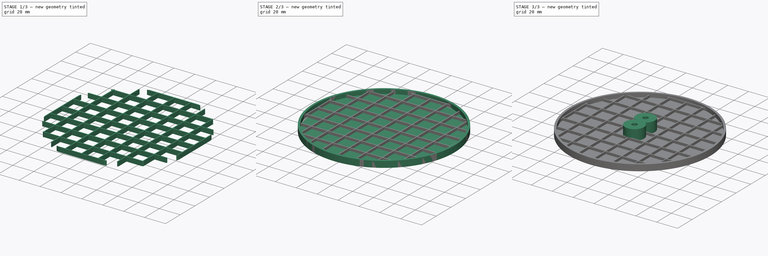
[diagram: build sequence overview — one tinted view per stage of 3, left to right]
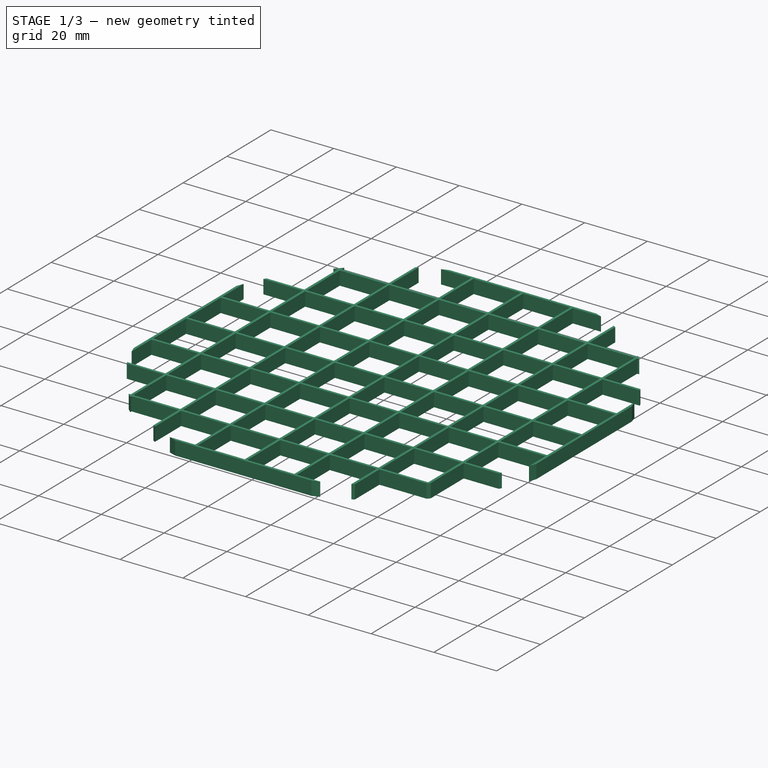
[diagram: stage 1 of 3 — iso view after this stage's code; geometry added in this stage tinted green]
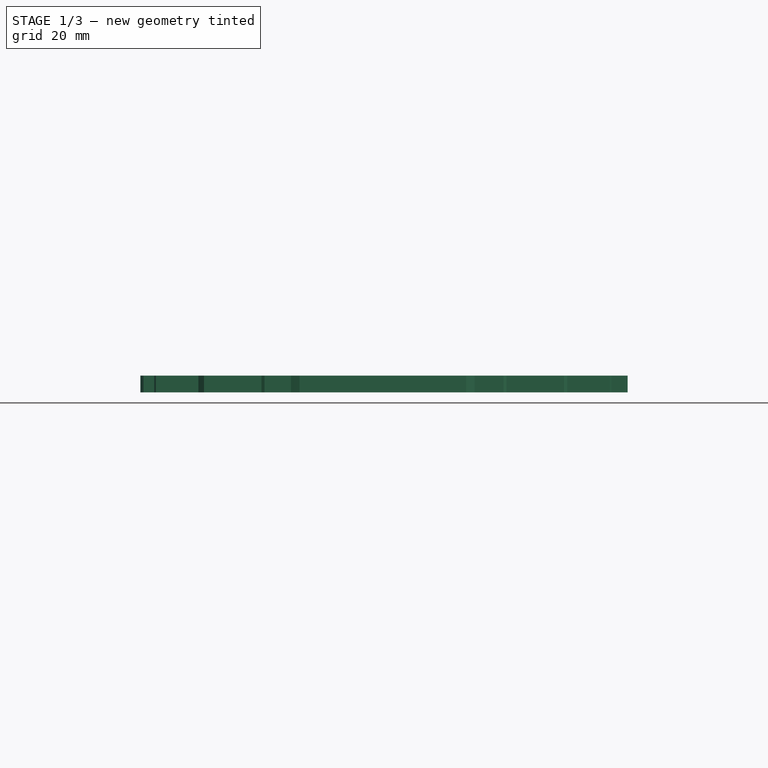
[diagram: stage 1 of 3 — front view after this stage's code; geometry added in this stage tinted green]
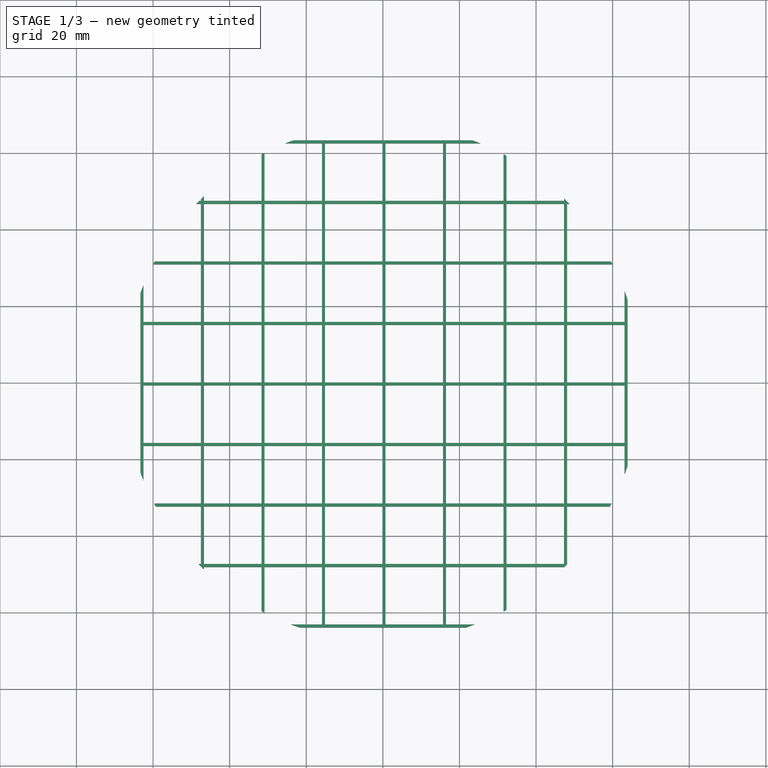
[diagram: stage 1 of 3 — top view after this stage's code; geometry added in this stage tinted green]
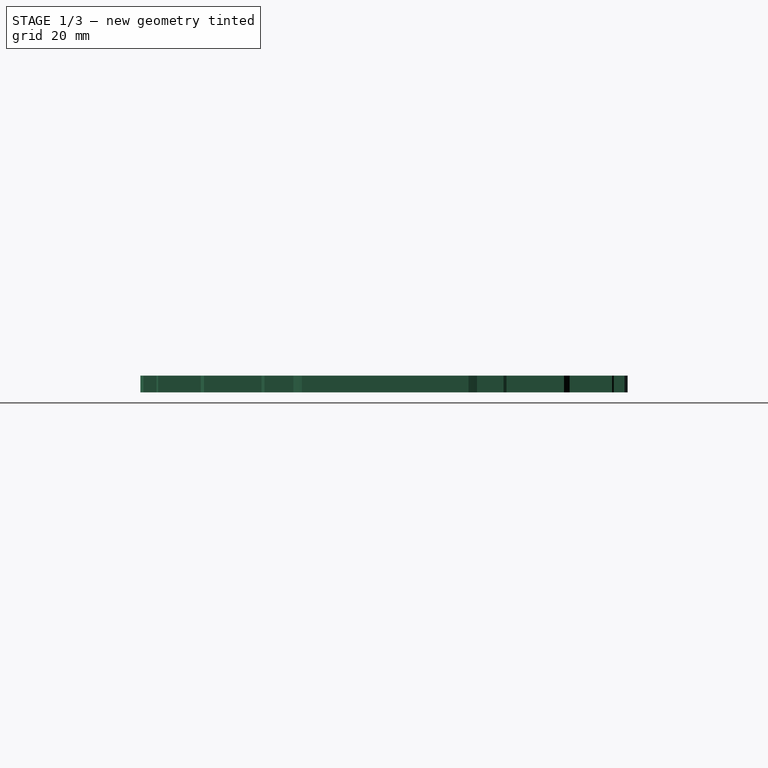
[diagram: stage 1 of 3 — right view after this stage's code; geometry added in this stage tinted green]
FCSTD DOCUMENT  (FreeCAD 0.18R16131 (Git))
Label: Bed
License: All rights reserved
LicenseURL: http://en.wikipedia.org/wiki/All_rights_reserved
objects: Sketcher::SketchObject×5, PartDesign::Pad×4, PartDesign::Body×3, PartDesign::Boolean×2, Spreadsheet::Sheet×1, PartDesign::Thickness×1, PartDesign::Plane×1, PartDesign::Pocket×1
note: 22 computed .brp shape members not serialized (recipe doc carries the construction recipe); baked Part::Feature solids carry a one-line shape summary decoded from their .brp

FEATURE [Sketcher::SketchObject] Sketch002
  MapMode = 5
  Support = -> [XY_Plane]
  expr: Constraints[4] = Parameters.TAL220_hole_spacing / 2
  expr: Constraints[3] = Parameters.TAL220_hole_spacing
  expr: Constraints[0] = Parameters.m4_head_diam
  sketch-geometry (2):
    g0: Circle CenterX=0 CenterY=7.5 CenterZ=0 NormalX=0 NormalY=0 NormalZ=1 AngleXU=0 Radius=4.5
    g1: Circle CenterX=0 CenterY=-7.5 CenterZ=0 NormalX=0 NormalY=0 NormalZ=1 AngleXU=0 Radius=4.5
  constraints (6):
    c: Diameter(g1) = 9
    c: Equal(g0,g1)
    c: Vertical(g0,g1)
    c: DistanceY(g1,g0) = 15
    c: DistanceY(g-1,g0) = 7.5
    c: Vertical(g0,g-1)
FEATURE [Sketcher::SketchObject] Sketch003
  MapMode = 2
  Support = -> [XY_Plane001]
  expr: Constraints[902] = Parameters.grid_line_width
  expr: Constraints[904] = Parameters.grid_line_width
  expr: Constraints[24] = Parameters.grid_line_spacing + Parameters.grid_line_width
  expr: Constraints[11] = Parameters.TAL220_to_center
  expr: Constraints[444] = 4 * (Parameters.grid_line_spacing + Parameters.grid_line_width)
  expr: Constraints[9] = Parameters.grid_line_spacing
  expr: Constraints[10] = Parameters.TAL220_to_center
  expr: Constraints[905] = Parameters.grid_line_width
  expr: Constraints[903] = Parameters.grid_line_width
  expr: Constraints[8] = Parameters.grid_line_spacing
  sketch-geometry (323):
    g0: LineSegment StartX=-62.5 StartY=62.5 StartZ=0 EndX=-47.5 EndY=62.5 EndZ=0
    g1: LineSegment StartX=-47.5 StartY=62.5 StartZ=0 EndX=-47.5 EndY=47.5 EndZ=0
    g2: LineSegment StartX=-47.5 StartY=47.5 StartZ=0 EndX=-62.5 EndY=47.5 EndZ=0
    g3: LineSegment StartX=-62.5 StartY=47.5 StartZ=0 EndX=-62.5 EndY=62.5 EndZ=0
    g4: LineSegment StartX=-46.7 StartY=62.5 StartZ=0 EndX=-31.7 EndY=62.5 EndZ=0
    g5: LineSegment StartX=-31.7 StartY=62.5 StartZ=0 EndX=-31.7 EndY=47.5 EndZ=0
    g6: LineSegment StartX=-31.7 StartY=47.5 StartZ=0 EndX=-46.7 EndY=47.5 EndZ=0
    g7: LineSegment StartX=-46.7 StartY=47.5 StartZ=0 EndX=-46.7 EndY=62.5 EndZ=0
    g8: LineSegment [constr] StartX=-62.5 StartY=62.5 StartZ=0 EndX=-46.7 EndY=62.5 EndZ=0
    g9: LineSegment StartX=-30.9 StartY=62.5 StartZ=0 EndX=-15.9 EndY=62.5 EndZ=0
    g10: LineSegment StartX=-15.9 StartY=62.5 StartZ=0 EndX=-15.9 EndY=47.5 EndZ=0
    g11: LineSegment StartX=-15.9 StartY=47.5 StartZ=0 EndX=-30.9 EndY=47.5 EndZ=0
    g12: LineSegment StartX=-30.9 StartY=47.5 StartZ=0 EndX=-30.9 EndY=62.5 EndZ=0
    g13: LineSegment [constr] StartX=-46.7 StartY=62.5 StartZ=0 EndX=-30.9 EndY=62.5 EndZ=0
    g14: LineSegment StartX=-15.1 StartY=62.5 StartZ=0 EndX=-0.1 EndY=62.5 EndZ=0
    g15: LineSegment StartX=-0.1 StartY=62.5 StartZ=0 EndX=-0.1 EndY=47.5 EndZ=0
    g16: LineSegment StartX=-0.1 StartY=47.5 StartZ=0 EndX=-15.1 EndY=47.5 EndZ=0
    g17: LineSegment StartX=-15.1 StartY=47.5 StartZ=0 EndX=-15.1 EndY=62.5 EndZ=0
    g18: LineSegment [constr] StartX=-30.9 StartY=62.5 StartZ=0 EndX=-15.1 EndY=62.5 EndZ=0
    g19: LineSegment StartX=-62.5 StartY=46.7 StartZ=0 EndX=-47.5 EndY=46.7 EndZ=0
    g20: LineSegment StartX=-47.5 StartY=46.7 StartZ=0 EndX=-47.5 EndY=31.7 EndZ=0
    g21: LineSegment StartX=-47.5 StartY=31.7 StartZ=0 EndX=-62.5 EndY=31.7 EndZ=0
    g22: LineSegment StartX=-62.5 StartY=31.7 StartZ=0 EndX=-62.5 EndY=46.7 EndZ=0
    g23: LineSegment [constr] StartX=-62.5 StartY=62.5 StartZ=0 EndX=-62.5 EndY=46.7 EndZ=0
    g24: LineSegment StartX=-46.7 StartY=46.7 StartZ=0 EndX=-31.7 EndY=46.7 EndZ=0
    g25: LineSegment StartX=-31.7 StartY=46.7 StartZ=0 EndX=-31.7 EndY=31.7 EndZ=0
    g26: LineSegment StartX=-31.7 StartY=31.7 StartZ=0 EndX=-46.7 EndY=31.7 EndZ=0
    g27: LineSegment StartX=-46.7 StartY=31.7 StartZ=0 EndX=-46.7 EndY=46.7 EndZ=0
    g28: LineSegment [constr] StartX=-62.5 StartY=46.7 StartZ=0 EndX=-46.7 EndY=46.7 EndZ=0
    g29: LineSegment StartX=-30.9 StartY=46.7 StartZ=0 EndX=-15.9 EndY=46.7 EndZ=0
    g30: LineSegment StartX=-15.9 StartY=46.7 StartZ=0 EndX=-15.9 EndY=31.7 EndZ=0
    g31: LineSegment StartX=-15.9 StartY=31.7 StartZ=0 EndX=-30.9 EndY=31.7 EndZ=0
    g32: LineSegment StartX=-30.9 StartY=31.7 StartZ=0 EndX=-30.9 EndY=46.7 EndZ=0
    g33: LineSegment [constr] StartX=-46.7 StartY=46.7 StartZ=0 EndX=-30.9 EndY=46.7 EndZ=0
    g34: LineSegment StartX=-15.1 StartY=46.7 StartZ=0 EndX=-0.1 EndY=46.7 EndZ=0
    g35: LineSegment StartX=-0.1 StartY=46.7 StartZ=0 EndX=-0.1 EndY=31.7 EndZ=0
    g36: LineSegment StartX=-0.1 StartY=31.7 StartZ=0 EndX=-15.1 EndY=31.7 EndZ=0
    g37: LineSegment StartX=-15.1 StartY=31.7 StartZ=0 EndX=-15.1 EndY=46.7 EndZ=0
    g38: LineSegment [constr] StartX=-30.9 StartY=46.7 StartZ=0 EndX=-15.1 EndY=46.7 EndZ=0
    g39: LineSegment StartX=-62.5 StartY=30.9 StartZ=0 EndX=-47.5 EndY=30.9 EndZ=0
    g40: LineSegment StartX=-47.5 StartY=30.9 StartZ=0 EndX=-47.5 EndY=15.9 EndZ=0
    g41: LineSegment StartX=-47.5 StartY=15.9 StartZ=0 EndX=-62.5 EndY=15.9 EndZ=0
    g42: LineSegment StartX=-62.5 StartY=15.9 StartZ=0 EndX=-62.5 EndY=30.9 EndZ=0
    g43: LineSegment [constr] StartX=-62.5 StartY=46.7 StartZ=0 EndX=-62.5 EndY=30.9 EndZ=0
    g44: LineSegment StartX=-46.7 StartY=30.9 StartZ=0 EndX=-31.7 EndY=30.9 EndZ=0
    g45: LineSegment StartX=-31.7 StartY=30.9 StartZ=0 EndX=-31.7 EndY=15.9 EndZ=0
    g46: LineSegment StartX=-31.7 StartY=15.9 StartZ=0 EndX=-46.7 EndY=15.9 EndZ=0
    g47: LineSegment StartX=-46.7 StartY=15.9 StartZ=0 EndX=-46.7 EndY=30.9 EndZ=0
    g48: LineSegment [constr] StartX=-62.5 StartY=30.9 StartZ=0 EndX=-46.7 EndY=30.9 EndZ=0
    g49: LineSegment StartX=-30.9 StartY=30.9 StartZ=0 EndX=-15.9 EndY=30.9 EndZ=0
    g50: LineSegment StartX=-15.9 StartY=30.9 StartZ=0 EndX=-15.9 EndY=15.9 EndZ=0
    g51: LineSegment StartX=-15.9 StartY=15.9 StartZ=0 EndX=-30.9 EndY=15.9 EndZ=0
    g52: LineSegment StartX=-30.9 StartY=15.9 StartZ=0 EndX=-30.9 EndY=30.9 EndZ=0
    g53: LineSegment [constr] StartX=-46.7 StartY=30.9 StartZ=0 EndX=-30.9 EndY=30.9 EndZ=0
    g54: LineSegment StartX=-15.1 StartY=30.9 StartZ=0 EndX=-0.1 EndY=30.9 EndZ=0
    g55: LineSegment StartX=-0.1 StartY=30.9 StartZ=0 EndX=-0.1 EndY=15.9 EndZ=0
    g56: LineSegment StartX=-0.1 StartY=15.9 StartZ=0 EndX=-15.1 EndY=15.9 EndZ=0
    g57: LineSegment StartX=-15.1 StartY=15.9 StartZ=0 EndX=-15.1 EndY=30.9 EndZ=0
    g58: LineSegment [constr] StartX=-30.9 StartY=30.9 StartZ=0 EndX=-15.1 EndY=30.9 EndZ=0
    g59: LineSegment StartX=-62.5 StartY=15.1 StartZ=0 EndX=-47.5 EndY=15.1 EndZ=0
    g60: LineSegment StartX=-47.5 StartY=15.1 StartZ=0 EndX=-47.5 EndY=0.1 EndZ=0
    g61: LineSegment StartX=-47.5 StartY=0.1 StartZ=0 EndX=-62.5 EndY=0.1 EndZ=0
    g62: LineSegment StartX=-62.5 StartY=0.1 StartZ=0 EndX=-62.5 EndY=15.1 EndZ=0
    g63: LineSegment [constr] StartX=-62.5 StartY=30.9 StartZ=0 EndX=-62.5 EndY=15.1 EndZ=0
    g64: LineSegment StartX=-46.7 StartY=15.1 StartZ=0 EndX=-31.7 EndY=15.1 EndZ=0
    g65: LineSegment StartX=-31.7 StartY=15.1 StartZ=0 EndX=-31.7 EndY=0.1 EndZ=0
    g66: LineSegment StartX=-31.7 StartY=0.1 StartZ=0 EndX=-46.7 EndY=0.1 EndZ=0
    g67: LineSegment StartX=-46.7 StartY=0.1 StartZ=0 EndX=-46.7 EndY=15.1 EndZ=0
    g68: LineSegment [constr] StartX=-62.5 StartY=15.1 StartZ=0 EndX=-46.7 EndY=15.1 EndZ=0
    g69: LineSegment StartX=-30.9 StartY=15.1 StartZ=0 EndX=-15.9 EndY=15.1 EndZ=0
    g70: LineSegment StartX=-15.9 StartY=15.1 StartZ=0 EndX=-15.9 EndY=0.1 EndZ=0
    g71: LineSegment StartX=-15.9 StartY=0.1 StartZ=0 EndX=-30.9 EndY=0.1 EndZ=0
    g72: LineSegment StartX=-30.9 StartY=0.1 StartZ=0 EndX=-30.9 EndY=15.1 EndZ=0
    g73: LineSegment [constr] StartX=-46.7 StartY=15.1 StartZ=0 EndX=-30.9 EndY=15.1 EndZ=0
    g74: LineSegment StartX=-15.1 StartY=15.1 StartZ=0 EndX=-0.1 EndY=15.1 EndZ=0
    g75: LineSegment StartX=-0.1 StartY=15.1 StartZ=0 EndX=-0.1 EndY=0.1 EndZ=0
    g76: LineSegment StartX=-0.1 StartY=0.1 StartZ=0 EndX=-15.1 EndY=0.1 EndZ=0
    g77: LineSegment StartX=-15.1 StartY=0.1 StartZ=0 EndX=-15.1 EndY=15.1 EndZ=0
    g78: LineSegment [constr] StartX=-30.9 StartY=15.1 StartZ=0 EndX=-15.1 EndY=15.1 EndZ=0
    g79: LineSegment StartX=0.7 StartY=62.5 StartZ=0 EndX=15.7 EndY=62.5 EndZ=0
    g80: LineSegment StartX=15.7 StartY=62.5 StartZ=0 EndX=15.7 EndY=47.5 EndZ=0
    g81: LineSegment StartX=15.7 StartY=47.5 StartZ=0 EndX=0.7 EndY=47.5 EndZ=0
    g82: LineSegment StartX=0.7 StartY=47.5 StartZ=0 EndX=0.7 EndY=62.5 EndZ=0
    g83: LineSegment StartX=16.5 StartY=62.5 StartZ=0 EndX=31.5 EndY=62.5 EndZ=0
    g84: LineSegment StartX=31.5 StartY=62.5 StartZ=0 EndX=31.5 EndY=47.5 EndZ=0
    g85: LineSegment StartX=31.5 StartY=47.5 StartZ=0 EndX=16.5 EndY=47.5 EndZ=0
    g86: LineSegment StartX=16.5 StartY=47.5 StartZ=0 EndX=16.5 EndY=62.5 EndZ=0
    g87: LineSegment [constr] StartX=0.7 StartY=62.5 StartZ=0 EndX=16.5 EndY=62.5 EndZ=0
    g88: LineSegment StartX=32.3 StartY=62.5 StartZ=0 EndX=47.3 EndY=62.5 EndZ=0
    g89: LineSegment StartX=47.3 StartY=62.5 StartZ=0 EndX=47.3 EndY=47.5 EndZ=0
    g90: LineSegment StartX=47.3 StartY=47.5 StartZ=0 EndX=32.3 EndY=47.5 EndZ=0
    g91: LineSegment StartX=32.3 StartY=47.5 StartZ=0 EndX=32.3 EndY=62.5 EndZ=0
    g92: LineSegment [constr] StartX=16.5 StartY=62.5 StartZ=0 EndX=32.3 EndY=62.5 EndZ=0
    g93: LineSegment StartX=48.1 StartY=62.5 StartZ=0 EndX=63.1 EndY=62.5 EndZ=0
    g94: LineSegment StartX=63.1 StartY=62.5 StartZ=0 EndX=63.1 EndY=47.5 EndZ=0
    g95: LineSegment StartX=63.1 StartY=47.5 StartZ=0 EndX=48.1 EndY=47.5 EndZ=0
    g96: LineSegment StartX=48.1 StartY=47.5 StartZ=0 EndX=48.1 EndY=62.5 EndZ=0
    g97: LineSegment [constr] StartX=32.3 StartY=62.5 StartZ=0 EndX=48.1 EndY=62.5 EndZ=0
    g98: LineSegment StartX=0.7 StartY=46.7 StartZ=0 EndX=15.7 EndY=46.7 EndZ=0
    g99: LineSegment StartX=15.7 StartY=46.7 StartZ=0 EndX=15.7 EndY=31.7 EndZ=0
    g100: LineSegment StartX=15.7 StartY=31.7 StartZ=0 EndX=0.7 EndY=31.7 EndZ=0
    g101: LineSegment StartX=0.7 StartY=31.7 StartZ=0 EndX=0.7 EndY=46.7 EndZ=0
    g102: LineSegment [constr] StartX=0.7 StartY=62.5 StartZ=0 EndX=0.7 EndY=46.7 EndZ=0
    g103: LineSegment StartX=16.5 StartY=46.7 StartZ=0 EndX=31.5 EndY=46.7 EndZ=0
    g104: LineSegment StartX=31.5 StartY=46.7 StartZ=0 EndX=31.5 EndY=31.7 EndZ=0
    g105: LineSegment StartX=31.5 StartY=31.7 StartZ=0 EndX=16.5 EndY=31.7 EndZ=0
    g106: LineSegment StartX=16.5 StartY=31.7 StartZ=0 EndX=16.5 EndY=46.7 EndZ=0
    g107: LineSegment [constr] StartX=0.7 StartY=46.7 StartZ=0 EndX=16.5 EndY=46.7 EndZ=0
    g108: LineSegment StartX=32.3 StartY=46.7 StartZ=0 EndX=47.3 EndY=46.7 EndZ=0
    g109: LineSegment StartX=47.3 StartY=46.7 StartZ=0 EndX=47.3 EndY=31.7 EndZ=0
    g110: LineSegment StartX=47.3 StartY=31.7 StartZ=0 EndX=32.3 EndY=31.7 EndZ=0
    g111: LineSegment StartX=32.3 StartY=31.7 StartZ=0 EndX=32.3 EndY=46.7 EndZ=0
    g112: LineSegment [constr] StartX=16.5 StartY=46.7 StartZ=0 EndX=32.3 EndY=46.7 EndZ=0
    g113: LineSegment StartX=48.1 StartY=46.7 StartZ=0 EndX=63.1 EndY=46.7 EndZ=0
    g114: LineSegment StartX=63.1 StartY=46.7 StartZ=0 EndX=63.1 EndY=31.7 EndZ=0
    g115: LineSegment StartX=63.1 StartY=31.7 StartZ=0 EndX=48.1 EndY=31.7 EndZ=0
    g116: LineSegment StartX=48.1 StartY=31.7 StartZ=0 EndX=48.1 EndY=46.7 EndZ=0
    g117: LineSegment [constr] StartX=32.3 StartY=46.7 StartZ=0 EndX=48.1 EndY=46.7 EndZ=0
    g118: LineSegment StartX=0.7 StartY=30.9 StartZ=0 EndX=15.7 EndY=30.9 EndZ=0
    g119: LineSegment StartX=15.7 StartY=30.9 StartZ=0 EndX=15.7 EndY=15.9 EndZ=0
    g120: LineSegment StartX=15.7 StartY=15.9 StartZ=0 EndX=0.7 EndY=15.9 EndZ=0
    g121: LineSegment StartX=0.7 StartY=15.9 StartZ=0 EndX=0.7 EndY=30.9 EndZ=0
    g122: LineSegment [constr] StartX=0.7 StartY=46.7 StartZ=0 EndX=0.7 EndY=30.9 EndZ=0
    g123: LineSegment StartX=16.5 StartY=30.9 StartZ=0 EndX=31.5 EndY=30.9 EndZ=0
    g124: LineSegment StartX=31.5 StartY=30.9 StartZ=0 EndX=31.5 EndY=15.9 EndZ=0
    g125: LineSegment StartX=31.5 StartY=15.9 StartZ=0 EndX=16.5 EndY=15.9 EndZ=0
    g126: LineSegment StartX=16.5 StartY=15.9 StartZ=0 EndX=16.5 EndY=30.9 EndZ=0
    g127: LineSegment [constr] StartX=0.7 StartY=30.9 StartZ=0 EndX=16.5 EndY=30.9 EndZ=0
    g128: LineSegment StartX=32.3 StartY=30.9 StartZ=0 EndX=47.3 EndY=30.9 EndZ=0
    g129: LineSegment StartX=47.3 StartY=30.9 StartZ=0 EndX=47.3 EndY=15.9 EndZ=0
    g130: LineSegment StartX=47.3 StartY=15.9 StartZ=0 EndX=32.3 EndY=15.9 EndZ=0
    g131: LineSegment StartX=32.3 StartY=15.9 StartZ=0 EndX=32.3 EndY=30.9 EndZ=0
    g132: LineSegment [constr] StartX=16.5 StartY=30.9 StartZ=0 EndX=32.3 EndY=30.9 EndZ=0
    g133: LineSegment StartX=48.1 StartY=30.9 StartZ=0 EndX=63.1 EndY=30.9 EndZ=0
    g134: LineSegment StartX=63.1 StartY=30.9 StartZ=0 EndX=63.1 EndY=15.9 EndZ=0
    g135: LineSegment StartX=63.1 StartY=15.9 StartZ=0 EndX=48.1 EndY=15.9 EndZ=0
    g136: LineSegment StartX=48.1 StartY=15.9 StartZ=0 EndX=48.1 EndY=30.9 EndZ=0
    g137: LineSegment [constr] StartX=32.3 StartY=30.9 StartZ=0 EndX=48.1 EndY=30.9 EndZ=0
    g138: LineSegment StartX=0.7 StartY=15.1 StartZ=0 EndX=15.7 EndY=15.1 EndZ=0
    g139: LineSegment StartX=15.7 StartY=15.1 StartZ=0 EndX=15.7 EndY=0.1 EndZ=0
    g140: LineSegment StartX=15.7 StartY=0.1 StartZ=0 EndX=0.7 EndY=0.1 EndZ=0
    g141: LineSegment StartX=0.7 StartY=0.1 StartZ=0 EndX=0.7 EndY=15.1 EndZ=0
    g142: LineSegment [constr] StartX=0.7 StartY=30.9 StartZ=0 EndX=0.7 EndY=15.1 EndZ=0
    g143: LineSegment StartX=16.5 StartY=15.1 StartZ=0 EndX=31.5 EndY=15.1 EndZ=0
    g144: LineSegment StartX=31.5 StartY=15.1 StartZ=0 EndX=31.5 EndY=0.1 EndZ=0
    g145: LineSegment StartX=31.5 StartY=0.1 StartZ=0 EndX=16.5 EndY=0.1 EndZ=0
    g146: LineSegment StartX=16.5 StartY=0.1 StartZ=0 EndX=16.5 EndY=15.1 EndZ=0
    g147: LineSegment [constr] StartX=0.7 StartY=15.1 StartZ=0 EndX=16.5 EndY=15.1 EndZ=0
    g148: LineSegment StartX=32.3 StartY=15.1 StartZ=0 EndX=47.3 EndY=15.1 EndZ=0
    g149: LineSegment StartX=47.3 StartY=15.1 StartZ=0 EndX=47.3 EndY=0.1 EndZ=0
    g150: LineSegment StartX=47.3 StartY=0.1 StartZ=0 EndX=32.3 EndY=0.1 EndZ=0
    g151: LineSegment StartX=32.3 StartY=0.1 StartZ=0 EndX=32.3 EndY=15.1 EndZ=0
    g152: LineSegment [constr] StartX=16.5 StartY=15.1 StartZ=0 EndX=32.3 EndY=15.1 EndZ=0
    g153: LineSegment StartX=48.1 StartY=15.1 StartZ=0 EndX=63.1 EndY=15.1 EndZ=0
    g154: LineSegment StartX=63.1 StartY=15.1 StartZ=0 EndX=63.1 EndY=0.1 EndZ=0
    g155: LineSegment StartX=63.1 StartY=0.1 StartZ=0 EndX=48.1 EndY=0.1 EndZ=0
    g156: LineSegment StartX=48.1 StartY=0.1 StartZ=0 EndX=48.1 EndY=15.1 EndZ=0
    g157: LineSegment [constr] StartX=32.3 StartY=15.1 StartZ=0 EndX=48.1 EndY=15.1 EndZ=0
    g158: LineSegment [constr] StartX=-62.5 StartY=62.5 StartZ=0 EndX=0.7 EndY=62.5 EndZ=0
    g159: LineSegment StartX=-62.5 StartY=-0.7 StartZ=0 EndX=-47.5 EndY=-0.7 EndZ=0
    g160: LineSegment StartX=-47.5 StartY=-0.7 StartZ=0 EndX=-47.5 EndY=-15.7 EndZ=0
    g161: LineSegment StartX=-47.5 StartY=-15.7 StartZ=0 EndX=-62.5 EndY=-15.7 EndZ=0
    g162: LineSegment StartX=-62.5 StartY=-15.7 StartZ=0 EndX=-62.5 EndY=-0.7 EndZ=0
    g163: LineSegment StartX=-46.7 StartY=-0.7 StartZ=0 EndX=-31.7 EndY=-0.7 EndZ=0
    g164: LineSegment StartX=-31.7 StartY=-0.7 StartZ=0 EndX=-31.7 EndY=-15.7 EndZ=0
    g165: LineSegment StartX=-31.7 StartY=-15.7 StartZ=0 EndX=-46.7 EndY=-15.7 EndZ=0
    g166: LineSegment StartX=-46.7 StartY=-15.7 StartZ=0 EndX=-46.7 EndY=-0.7 EndZ=0
    g167: LineSegment [constr] StartX=-62.5 StartY=-0.7 StartZ=0 EndX=-46.7 EndY=-0.7 EndZ=0
    g168: LineSegment StartX=-30.9 StartY=-0.7 StartZ=0 EndX=-15.9 EndY=-0.7 EndZ=0
    g169: LineSegment StartX=-15.9 StartY=-0.7 StartZ=0 EndX=-15.9 EndY=-15.7 EndZ=0
    g170: LineSegment StartX=-15.9 StartY=-15.7 StartZ=0 EndX=-30.9 EndY=-15.7 EndZ=0
    g171: LineSegment StartX=-30.9 StartY=-15.7 StartZ=0 EndX=-30.9 EndY=-0.7 EndZ=0
    g172: LineSegment [constr] StartX=-46.7 StartY=-0.7 StartZ=0 EndX=-30.9 EndY=-0.7 EndZ=0
    g173: LineSegment StartX=-15.1 StartY=-0.7 StartZ=0 EndX=-0.1 EndY=-0.7 EndZ=0
    g174: LineSegment StartX=-0.1 StartY=-0.7 StartZ=0 EndX=-0.1 EndY=-15.7 EndZ=0
    g175: LineSegment StartX=-0.1 StartY=-15.7 StartZ=0 EndX=-15.1 EndY=-15.7 EndZ=0
    g176: LineSegment StartX=-15.1 StartY=-15.7 StartZ=0 EndX=-15.1 EndY=-0.7 EndZ=0
    g177: LineSegment [constr] StartX=-30.9 StartY=-0.7 StartZ=0 EndX=-15.1 EndY=-0.7 EndZ=0
    g178: LineSegment StartX=-62.5 StartY=-16.5 StartZ=0 EndX=-47.5 EndY=-16.5 EndZ=0
    g179: LineSegment StartX=-47.5 StartY=-16.5 StartZ=0 EndX=-47.5 EndY=-31.5 EndZ=0
    g180: LineSegment StartX=-47.5 StartY=-31.5 StartZ=0 EndX=-62.5 EndY=-31.5 EndZ=0
    g181: LineSegment StartX=-62.5 StartY=-31.5 StartZ=0 EndX=-62.5 EndY=-16.5 EndZ=0
    g182: LineSegment [constr] StartX=-62.5 StartY=-0.7 StartZ=0 EndX=-62.5 EndY=-16.5 EndZ=0
    g183: LineSegment StartX=-46.7 StartY=-16.5 StartZ=0 EndX=-31.7 EndY=-16.5 EndZ=0
    g184: LineSegment StartX=-31.7 StartY=-16.5 StartZ=0 EndX=-31.7 EndY=-31.5 EndZ=0
    g185: LineSegment StartX=-31.7 StartY=-31.5 StartZ=0 EndX=-46.7 EndY=-31.5 EndZ=0
    g186: LineSegment StartX=-46.7 StartY=-31.5 StartZ=0 EndX=-46.7 EndY=-16.5 EndZ=0
    g187: LineSegment [constr] StartX=-62.5 StartY=-16.5 StartZ=0 EndX=-46.7 EndY=-16.5 EndZ=0
    g188: LineSegment StartX=-30.9 StartY=-16.5 StartZ=0 EndX=-15.9 EndY=-16.5 EndZ=0
    g189: LineSegment StartX=-15.9 StartY=-16.5 StartZ=0 EndX=-15.9 EndY=-31.5 EndZ=0
    g190: LineSegment StartX=-15.9 StartY=-31.5 StartZ=0 EndX=-30.9 EndY=-31.5 EndZ=0
    g191: LineSegment StartX=-30.9 StartY=-31.5 StartZ=0 EndX=-30.9 EndY=-16.5 EndZ=0
    g192: LineSegment [constr] StartX=-46.7 StartY=-16.5 StartZ=0 EndX=-30.9 EndY=-16.5 EndZ=0
    g193: LineSegment StartX=-15.1 StartY=-16.5 StartZ=0 EndX=-0.1 EndY=-16.5 EndZ=0
    g194: LineSegment StartX=-0.1 StartY=-16.5 StartZ=0 EndX=-0.1 EndY=-31.5 EndZ=0
    g195: LineSegment StartX=-0.1 StartY=-31.5 StartZ=0 EndX=-15.1 EndY=-31.5 EndZ=0
    g196: LineSegment StartX=-15.1 StartY=-31.5 StartZ=0 EndX=-15.1 EndY=-16.5 EndZ=0
    g197: LineSegment [constr] StartX=-30.9 StartY=-16.5 StartZ=0 EndX=-15.1 EndY=-16.5 EndZ=0
    g198: LineSegment StartX=-62.5 StartY=-32.3 StartZ=0 EndX=-47.5 EndY=-32.3 EndZ=0
    g199: LineSegment StartX=-47.5 StartY=-32.3 StartZ=0 EndX=-47.5 EndY=-47.3 EndZ=0
    g200: LineSegment StartX=-47.5 StartY=-47.3 StartZ=0 EndX=-62.5 EndY=-47.3 EndZ=0
    g201: LineSegment StartX=-62.5 StartY=-47.3 StartZ=0 EndX=-62.5 EndY=-32.3 EndZ=0
    g202: LineSegment [constr] StartX=-62.5 StartY=-16.5 StartZ=0 EndX=-62.5 EndY=-32.3 EndZ=0
    g203: LineSegment StartX=-46.7 StartY=-32.3 StartZ=0 EndX=-31.7 EndY=-32.3 EndZ=0
    g204: LineSegment StartX=-31.7 StartY=-32.3 StartZ=0 EndX=-31.7 EndY=-47.3 EndZ=0
    g205: LineSegment StartX=-31.7 StartY=-47.3 StartZ=0 EndX=-46.7 EndY=-47.3 EndZ=0
    g206: LineSegment StartX=-46.7 StartY=-47.3 StartZ=0 EndX=-46.7 EndY=-32.3 EndZ=0
    g207: LineSegment [constr] StartX=-62.5 StartY=-32.3 StartZ=0 EndX=-46.7 EndY=-32.3 EndZ=0
    g208: LineSegment StartX=-30.9 StartY=-32.3 StartZ=0 EndX=-15.9 EndY=-32.3 EndZ=0
    g209: LineSegment StartX=-15.9 StartY=-32.3 StartZ=0 EndX=-15.9 EndY=-47.3 EndZ=0
    g210: LineSegment StartX=-15.9 StartY=-47.3 StartZ=0 EndX=-30.9 EndY=-47.3 EndZ=0
    g211: LineSegment StartX=-30.9 StartY=-47.3 StartZ=0 EndX=-30.9 EndY=-32.3 EndZ=0
    g212: LineSegment [constr] StartX=-46.7 StartY=-32.3 StartZ=0 EndX=-30.9 EndY=-32.3 EndZ=0
    g213: LineSegment StartX=-15.1 StartY=-32.3 StartZ=0 EndX=-0.1 EndY=-32.3 EndZ=0
    g214: LineSegment StartX=-0.1 StartY=-32.3 StartZ=0 EndX=-0.1 EndY=-47.3 EndZ=0
    g215: LineSegment StartX=-0.1 StartY=-47.3 StartZ=0 EndX=-15.1 EndY=-47.3 EndZ=0
    g216: LineSegment StartX=-15.1 StartY=-47.3 StartZ=0 EndX=-15.1 EndY=-32.3 EndZ=0
    g217: LineSegment [constr] StartX=-30.9 StartY=-32.3 StartZ=0 EndX=-15.1 EndY=-32.3 EndZ=0
    g218: LineSegment StartX=-62.5 StartY=-48.1 StartZ=0 EndX=-47.5 EndY=-48.1 EndZ=0
    g219: LineSegment StartX=-47.5 StartY=-48.1 StartZ=0 EndX=-47.5 EndY=-63.1 EndZ=0
    g220: LineSegment StartX=-47.5 StartY=-63.1 StartZ=0 EndX=-62.5 EndY=-63.1 EndZ=0
    g221: LineSegment StartX=-62.5 StartY=-63.1 StartZ=0 EndX=-62.5 EndY=-48.1 EndZ=0
    g222: LineSegment [constr] StartX=-62.5 StartY=-32.3 StartZ=0 EndX=-62.5 EndY=-48.1 EndZ=0
    g223: LineSegment StartX=-46.7 StartY=-48.1 StartZ=0 EndX=-31.7 EndY=-48.1 EndZ=0
    g224: LineSegment StartX=-31.7 StartY=-48.1 StartZ=0 EndX=-31.7 EndY=-63.1 EndZ=0
    g225: LineSegment StartX=-31.7 StartY=-63.1 StartZ=0 EndX=-46.7 EndY=-63.1 EndZ=0
    g226: LineSegment StartX=-46.7 StartY=-63.1 StartZ=0 EndX=-46.7 EndY=-48.1 EndZ=0
    g227: LineSegment [constr] StartX=-62.5 StartY=-48.1 StartZ=0 EndX=-46.7 EndY=-48.1 EndZ=0
    g228: LineSegment StartX=-30.9 StartY=-48.1 StartZ=0 EndX=-15.9 EndY=-48.1 EndZ=0
    g229: LineSegment StartX=-15.9 StartY=-48.1 StartZ=0 EndX=-15.9 EndY=-63.1 EndZ=0
    g230: LineSegment StartX=-15.9 StartY=-63.1 StartZ=0 EndX=-30.9 EndY=-63.1 EndZ=0
    g231: LineSegment StartX=-30.9 StartY=-63.1 StartZ=0 EndX=-30.9 EndY=-48.1 EndZ=0
    g232: LineSegment [constr] StartX=-46.7 StartY=-48.1 StartZ=0 EndX=-30.9 EndY=-48.1 EndZ=0
    g233: LineSegment StartX=-15.1 StartY=-48.1 StartZ=0 EndX=-0.1 EndY=-48.1 EndZ=0
    g234: LineSegment StartX=-0.1 StartY=-48.1 StartZ=0 EndX=-0.1 EndY=-63.1 EndZ=0
    g235: LineSegment StartX=-0.1 StartY=-63.1 StartZ=0 EndX=-15.1 EndY=-63.1 EndZ=0
    g236: LineSegment StartX=-15.1 StartY=-63.1 StartZ=0 EndX=-15.1 EndY=-48.1 EndZ=0
    g237: LineSegment [constr] StartX=-30.9 StartY=-48.1 StartZ=0 EndX=-15.1 EndY=-48.1 EndZ=0
    g238: LineSegment [constr] StartX=-62.5 StartY=62.5 StartZ=0 EndX=-62.5 EndY=-0.7 EndZ=0
    g239: LineSegment StartX=0.7 StartY=-0.7 StartZ=0 EndX=15.7 EndY=-0.7 EndZ=0
    g240: LineSegment StartX=15.7 StartY=-0.7 StartZ=0 EndX=15.7 EndY=-15.7 EndZ=0
    g241: LineSegment StartX=15.7 StartY=-15.7 StartZ=0 EndX=0.7 EndY=-15.7 EndZ=0
    g242: LineSegment StartX=0.7 StartY=-15.7 StartZ=0 EndX=0.7 EndY=-0.7 EndZ=0
    g243: LineSegment StartX=16.5 StartY=-0.7 StartZ=0 EndX=31.5 EndY=-0.7 EndZ=0
    g244: LineSegment StartX=31.5 StartY=-0.7 StartZ=0 EndX=31.5 EndY=-15.7 EndZ=0
    g245: LineSegment StartX=31.5 StartY=-15.7 StartZ=0 EndX=16.5 EndY=-15.7 EndZ=0
    g246: LineSegment StartX=16.5 StartY=-15.7 StartZ=0 EndX=16.5 EndY=-0.7 EndZ=0
    g247: LineSegment [constr] StartX=0.7 StartY=-0.7 StartZ=0 EndX=16.5 EndY=-0.7 EndZ=0
    g248: LineSegment StartX=32.3 StartY=-0.7 StartZ=0 EndX=47.3 EndY=-0.7 EndZ=0
    g249: LineSegment StartX=47.3 StartY=-0.7 StartZ=0 EndX=47.3 EndY=-15.7 EndZ=0
    g250: LineSegment StartX=47.3 StartY=-15.7 StartZ=0 EndX=32.3 EndY=-15.7 EndZ=0
    g251: LineSegment StartX=32.3 StartY=-15.7 StartZ=0 EndX=32.3 EndY=-0.7 EndZ=0
    g252: LineSegment [constr] StartX=16.5 StartY=-0.7 StartZ=0 EndX=32.3 EndY=-0.7 EndZ=0
    g253: LineSegment StartX=48.1 StartY=-0.7 StartZ=0 EndX=63.1 EndY=-0.7 EndZ=0
    g254: LineSegment StartX=63.1 StartY=-0.7 StartZ=0 EndX=63.1 EndY=-15.7 EndZ=0
    g255: LineSegment StartX=63.1 StartY=-15.7 StartZ=0 EndX=48.1 EndY=-15.7 EndZ=0
    g256: LineSegment StartX=48.1 StartY=-15.7 StartZ=0 EndX=48.1 EndY=-0.7 EndZ=0
    g257: LineSegment [constr] StartX=32.3 StartY=-0.7 StartZ=0 EndX=48.1 EndY=-0.7 EndZ=0
    g258: LineSegment StartX=0.7 StartY=-16.5 StartZ=0 EndX=15.7 EndY=-16.5 EndZ=0
    g259: LineSegment StartX=15.7 StartY=-16.5 StartZ=0 EndX=15.7 EndY=-31.5 EndZ=0
    g260: LineSegment StartX=15.7 StartY=-31.5 StartZ=0 EndX=0.7 EndY=-31.5 EndZ=0
    g261: LineSegment StartX=0.7 StartY=-31.5 StartZ=0 EndX=0.7 EndY=-16.5 EndZ=0
    g262: LineSegment [constr] StartX=0.7 StartY=-0.7 StartZ=0 EndX=0.7 EndY=-16.5 EndZ=0
    g263: LineSegment StartX=16.5 StartY=-16.5 StartZ=0 EndX=31.5 EndY=-16.5 EndZ=0
    g264: LineSegment StartX=31.5 StartY=-16.5 StartZ=0 EndX=31.5 EndY=-31.5 EndZ=0
    g265: LineSegment StartX=31.5 StartY=-31.5 StartZ=0 EndX=16.5 EndY=-31.5 EndZ=0
    g266: LineSegment StartX=16.5 StartY=-31.5 StartZ=0 EndX=16.5 EndY=-16.5 EndZ=0
    g267: LineSegment [constr] StartX=0.7 StartY=-16.5 StartZ=0 EndX=16.5 EndY=-16.5 EndZ=0
    g268: LineSegment StartX=32.3 StartY=-16.5 StartZ=0 EndX=47.3 EndY=-16.5 EndZ=0
    g269: LineSegment StartX=47.3 StartY=-16.5 StartZ=0 EndX=47.3 EndY=-31.5 EndZ=0
    g270: LineSegment StartX=47.3 StartY=-31.5 StartZ=0 EndX=32.3 EndY=-31.5 EndZ=0
    g271: LineSegment StartX=32.3 StartY=-31.5 StartZ=0 EndX=32.3 EndY=-16.5 EndZ=0
    g272: LineSegment [constr] StartX=16.5 StartY=-16.5 StartZ=0 EndX=32.3 EndY=-16.5 EndZ=0
    g273: LineSegment StartX=48.1 StartY=-16.5 StartZ=0 EndX=63.1 EndY=-16.5 EndZ=0
    g274: LineSegment StartX=63.1 StartY=-16.5 StartZ=0 EndX=63.1 EndY=-31.5 EndZ=0
    g275: LineSegment StartX=63.1 StartY=-31.5 StartZ=0 EndX=48.1 EndY=-31.5 EndZ=0
    g276: LineSegment StartX=48.1 StartY=-31.5 StartZ=0 EndX=48.1 EndY=-16.5 EndZ=0
    g277: LineSegment [constr] StartX=32.3 StartY=-16.5 StartZ=0 EndX=48.1 EndY=-16.5 EndZ=0
    g278: LineSegment StartX=0.7 StartY=-32.3 StartZ=0 EndX=15.7 EndY=-32.3 EndZ=0
    g279: LineSegment StartX=15.7 StartY=-32.3 StartZ=0 EndX=15.7 EndY=-47.3 EndZ=0
    g280: LineSegment StartX=15.7 StartY=-47.3 StartZ=0 EndX=0.7 EndY=-47.3 EndZ=0
    g281: LineSegment StartX=0.7 StartY=-47.3 StartZ=0 EndX=0.7 EndY=-32.3 EndZ=0
    g282: LineSegment [constr] StartX=0.7 StartY=-16.5 StartZ=0 EndX=0.7 EndY=-32.3 EndZ=0
    g283: LineSegment StartX=16.5 StartY=-32.3 StartZ=0 EndX=31.5 EndY=-32.3 EndZ=0
    g284: LineSegment StartX=31.5 StartY=-32.3 StartZ=0 EndX=31.5 EndY=-47.3 EndZ=0
    g285: LineSegment StartX=31.5 StartY=-47.3 StartZ=0 EndX=16.5 EndY=-47.3 EndZ=0
    g286: LineSegment StartX=16.5 StartY=-47.3 StartZ=0 EndX=16.5 EndY=-32.3 EndZ=0
    g287: LineSegment [constr] StartX=0.7 StartY=-32.3 StartZ=0 EndX=16.5 EndY=-32.3 EndZ=0
    g288: LineSegment StartX=32.3 StartY=-32.3 StartZ=0 EndX=47.3 EndY=-32.3 EndZ=0
    g289: LineSegment StartX=47.3 StartY=-32.3 StartZ=0 EndX=47.3 EndY=-47.3 EndZ=0
    g290: LineSegment StartX=47.3 StartY=-47.3 StartZ=0 EndX=32.3 EndY=-47.3 EndZ=0
    g291: LineSegment StartX=32.3 StartY=-47.3 StartZ=0 EndX=32.3 EndY=-32.3 EndZ=0
    g292: LineSegment [constr] StartX=16.5 StartY=-32.3 StartZ=0 EndX=32.3 EndY=-32.3 EndZ=0
    g293: LineSegment StartX=48.1 StartY=-32.3 StartZ=0 EndX=63.1 EndY=-32.3 EndZ=0
    g294: LineSegment StartX=63.1 StartY=-32.3 StartZ=0 EndX=63.1 EndY=-47.3 EndZ=0
    g295: LineSegment StartX=63.1 StartY=-47.3 StartZ=0 EndX=48.1 EndY=-47.3 EndZ=0
    g296: LineSegment StartX=48.1 StartY=-47.3 StartZ=0 EndX=48.1 EndY=-32.3 EndZ=0
    g297: LineSegment [constr] StartX=32.3 StartY=-32.3 StartZ=0 EndX=48.1 EndY=-32.3 EndZ=0
    g298: LineSegment StartX=0.7 StartY=-48.1 StartZ=0 EndX=15.7 EndY=-48.1 EndZ=0
    g299: LineSegment StartX=15.7 StartY=-48.1 StartZ=0 EndX=15.7 EndY=-63.1 EndZ=0
    g300: LineSegment StartX=15.7 StartY=-63.1 StartZ=0 EndX=0.7 EndY=-63.1 EndZ=0
    g301: LineSegment StartX=0.7 StartY=-63.1 StartZ=0 EndX=0.7 EndY=-48.1 EndZ=0
    g302: LineSegment [constr] StartX=0.7 StartY=-32.3 StartZ=0 EndX=0.7 EndY=-48.1 EndZ=0
    g303: LineSegment StartX=16.5 StartY=-48.1 StartZ=0 EndX=31.5 EndY=-48.1 EndZ=0
    g304: LineSegment StartX=31.5 StartY=-48.1 StartZ=0 EndX=31.5 EndY=-63.1 EndZ=0
    g305: LineSegment StartX=31.5 StartY=-63.1 StartZ=0 EndX=16.5 EndY=-63.1 EndZ=0
    g306: LineSegment StartX=16.5 StartY=-63.1 StartZ=0 EndX=16.5 EndY=-48.1 EndZ=0
    g307: LineSegment [constr] StartX=0.7 StartY=-48.1 StartZ=0 EndX=16.5 EndY=-48.1 EndZ=0
    g308: LineSegment StartX=32.3 StartY=-48.1 StartZ=0 EndX=47.3 EndY=-48.1 EndZ=0
    g309: LineSegment StartX=47.3 StartY=-48.1 StartZ=0 EndX=47.3 EndY=-63.1 EndZ=0
    g310: LineSegment StartX=47.3 StartY=-63.1 StartZ=0 EndX=32.3 EndY=-63.1 EndZ=0
    g311: LineSegment StartX=32.3 StartY=-63.1 StartZ=0 EndX=32.3 EndY=-48.1 EndZ=0
    g312: LineSegment [constr] StartX=16.5 StartY=-48.1 StartZ=0 EndX=32.3 EndY=-48.1 EndZ=0
    g313: LineSegment StartX=48.1 StartY=-48.1 StartZ=0 EndX=63.1 EndY=-48.1 EndZ=0
    g314: LineSegment StartX=63.1 StartY=-48.1 StartZ=0 EndX=63.1 EndY=-63.1 EndZ=0
    g315: LineSegment StartX=63.1 StartY=-63.1 StartZ=0 EndX=48.1 EndY=-63.1 EndZ=0
    g316: LineSegment StartX=48.1 StartY=-63.1 StartZ=0 EndX=48.1 EndY=-48.1 EndZ=0
    g317: LineSegment [constr] StartX=32.3 StartY=-48.1 StartZ=0 EndX=48.1 EndY=-48.1 EndZ=0
    g318: LineSegment [constr] StartX=-62.5 StartY=-0.7 StartZ=0 EndX=0.7 EndY=-0.7 EndZ=0
    g319: LineSegment StartX=-63.3 StartY=63.3 StartZ=0 EndX=63.9 EndY=63.3 EndZ=0
    g320: LineSegment StartX=63.9 StartY=63.3 StartZ=0 EndX=63.9 EndY=-63.9 EndZ=0
    g321: LineSegment StartX=63.9 StartY=-63.9 StartZ=0 EndX=-63.3 EndY=-63.9 EndZ=0
    g322: LineSegment StartX=-63.3 StartY=-63.9 StartZ=0 EndX=-63.3 EndY=63.3 EndZ=0
  constraints (906):
    c: Coincident(g0,g1)
    c: Coincident(g1,g2)
    c: Coincident(g2,g3)
    c: Coincident(g3,g0)
    c: Horizontal(g0)
    c: Horizontal(g2)
    c: Vertical(g1)
    c: Vertical(g3)
    c: DistanceY(g1,g1) = 15
    c: DistanceX(g0,g0) = 15
    c: DistanceX(g0,g-1) = 62.5
    c: DistanceY(g-1,g0) = 62.5
    c: Coincident(g4,g5)
    c: Coincident(g5,g6)
    c: Coincident(g6,g7)
    c: Coincident(g7,g4)
    c: Horizontal(g4)
    c: Horizontal(g6)
    c: Vertical(g5)
    c: Vertical(g7)
    c: Equal(g1,g5) = 15
    c: Equal(g0,g4) = 15
    c: Coincident(g0,g8)
    c: Coincident(g4,g8)
    c: Distance(g8) = 15.8
    c: Angle(g8) = 0
    c: Coincident(g9,g10)
    c: Coincident(g10,g11)
    c: Coincident(g11,g12)
    c: Coincident(g12,g9)
    c: Horizontal(g9)
    c: Horizontal(g11)
    c: Vertical(g10)
    c: Vertical(g12)
    c: Equal(g1,g10) = 15
    c: Equal(g0,g9) = 15
    c: Coincident(g4,g13)
    c: Coincident(g9,g13)
    c: Equal(g8,g13)
    c: Parallel(g13,g8)
    c: Coincident(g14,g15)
    c: Coincident(g15,g16)
    c: Coincident(g16,g17)
    c: Coincident(g17,g14)
    c: Horizontal(g14)
    c: Horizontal(g16)
    c: Vertical(g15)
    c: Vertical(g17)
    c: Equal(g1,g15) = 15
    c: Equal(g0,g14) = 15
    c: Coincident(g9,g18)
    c: Coincident(g14,g18)
    c: Equal(g8,g18)
    c: Parallel(g18,g8)
    c: Coincident(g19,g20)
    c: Coincident(g20,g21)
    c: Coincident(g21,g22)
    c: Coincident(g22,g19)
    c: Horizontal(g19)
    c: Horizontal(g21)
    c: Vertical(g20)
    c: Vertical(g22)
    c: Equal(g1,g20) = 15
    c: Equal(g0,g19) = 15
    c: Coincident(g0,g23)
    c: Coincident(g19,g23)
    c: Equal(g23,g8)
    c: Perpendicular(g23,g8)
    c: Coincident(g24,g25)
    c: Coincident(g25,g26)
    c: Coincident(g26,g27)
    c: Coincident(g27,g24)
    c: Horizontal(g24)
    c: Horizontal(g26)
    c: Vertical(g25)
    c: Vertical(g27)
    c: Equal(g1,g25) = 15
    c: Equal(g0,g24) = 15
    c: Coincident(g19,g28)
    c: Coincident(g24,g28)
    c: Equal(g8,g28)
    c: Parallel(g28,g8)
    c: Coincident(g29,g30)
    c: Coincident(g30,g31)
    c: Coincident(g31,g32)
    c: Coincident(g32,g29)
    c: Horizontal(g29)
    c: Horizontal(g31)
    c: Vertical(g30)
    c: Vertical(g32)
    c: Equal(g1,g30) = 15
    c: Equal(g0,g29) = 15
    c: Coincident(g24,g33)
    c: Coincident(g29,g33)
    c: Equal(g8,g33)
    c: Parallel(g33,g8)
    c: Coincident(g34,g35)
    c: Coincident(g35,g36)
    c: Coincident(g36,g37)
    c: Coincident(g37,g34)
    c: Horizontal(g34)
    c: Horizontal(g36)
    c: Vertical(g35)
    c: Vertical(g37)
    c: Equal(g1,g35) = 15
    c: Equal(g0,g34) = 15
    c: Coincident(g29,g38)
    c: Coincident(g34,g38)
    c: Equal(g8,g38)
    c: Parallel(g38,g8)
    c: Coincident(g39,g40)
    c: Coincident(g40,g41)
    c: Coincident(g41,g42)
    c: Coincident(g42,g39)
    c: Horizontal(g39)
    c: Horizontal(g41)
    c: Vertical(g40)
    c: Vertical(g42)
    c: Equal(g1,g40) = 15
    c: Equal(g0,g39) = 15
    c: Coincident(g19,g43)
    c: Coincident(g39,g43)
    c: Equal(g23,g43)
    c: Perpendicular(g43,g8)
    c: Coincident(g44,g45)
    c: Coincident(g45,g46)
    c: Coincident(g46,g47)
    c: Coincident(g47,g44)
    c: Horizontal(g44)
    c: Horizontal(g46)
    c: Vertical(g45)
    c: Vertical(g47)
    c: Equal(g1,g45) = 15
    c: Equal(g0,g44) = 15
    c: Coincident(g39,g48)
    c: Coincident(g44,g48)
    c: Equal(g8,g48)
    c: Parallel(g48,g8)
    c: Coincident(g49,g50)
    c: Coincident(g50,g51)
    c: Coincident(g51,g52)
    c: Coincident(g52,g49)
    c: Horizontal(g49)
    c: Horizontal(g51)
    c: Vertical(g50)
    c: Vertical(g52)
    c: Equal(g1,g50) = 15
    c: Equal(g0,g49) = 15
    c: Coincident(g44,g53)
    c: Coincident(g49,g53)
    c: Equal(g8,g53)
    c: Parallel(g53,g8)
    c: Coincident(g54,g55)
    c: Coincident(g55,g56)
    c: Coincident(g56,g57)
    c: Coincident(g57,g54)
    c: Horizontal(g54)
    c: Horizontal(g56)
    c: Vertical(g55)
    c: Vertical(g57)
    c: Equal(g1,g55) = 15
    c: Equal(g0,g54) = 15
    c: Coincident(g49,g58)
    c: Coincident(g54,g58)
    c: Equal(g8,g58)
    c: Parallel(g58,g8)
    c: Coincident(g59,g60)
    c: Coincident(g60,g61)
    c: Coincident(g61,g62)
    c: Coincident(g62,g59)
    c: Horizontal(g59)
    c: Horizontal(g61)
    c: Vertical(g60)
    c: Vertical(g62)
    c: Equal(g1,g60) = 15
    c: Equal(g0,g59) = 15
    c: Coincident(g39,g63)
    c: Coincident(g59,g63)
    c: Equal(g23,g63)
    c: Perpendicular(g63,g8)
    c: Coincident(g64,g65)
    c: Coincident(g65,g66)
    c: Coincident(g66,g67)
    c: Coincident(g67,g64)
    c: Horizontal(g64)
    c: Horizontal(g66)
    c: Vertical(g65)
    c: Vertical(g67)
    c: Equal(g1,g65) = 15
    c: Equal(g0,g64) = 15
    c: Coincident(g59,g68)
    c: Coincident(g64,g68)
    c: Equal(g8,g68)
    c: Parallel(g68,g8)
    c: Coincident(g69,g70)
    c: Coincident(g70,g71)
    c: Coincident(g71,g72)
    c: Coincident(g72,g69)
    c: Horizontal(g69)
    c: Horizontal(g71)
    c: Vertical(g70)
    c: Vertical(g72)
    c: Equal(g1,g70) = 15
    c: Equal(g0,g69) = 15
    c: Coincident(g64,g73)
    c: Coincident(g69,g73)
    c: Equal(g8,g73)
    c: Parallel(g73,g8)
    c: Coincident(g74,g75)
    c: Coincident(g75,g76)
    c: Coincident(g76,g77)
    c: Coincident(g77,g74)
    c: Horizontal(g74)
    c: Horizontal(g76)
    c: Vertical(g75)
    c: Vertical(g77)
    c: Equal(g1,g75) = 15
    c: Equal(g0,g74) = 15
    c: Coincident(g69,g78)
    c: Coincident(g74,g78)
    c: Equal(g8,g78)
    c: Parallel(g78,g8)
    c: Coincident(g79,g80)
    c: Coincident(g80,g81)
    c: Coincident(g81,g82)
    c: Coincident(g82,g79)
    c: Horizontal(g79)
    c: Horizontal(g81)
    c: Vertical(g80)
    c: Vertical(g82)
    c: DistanceY(g80,g80) = 15
    c: DistanceX(g79,g79) = 15
    c: Coincident(g83,g84)
    c: Coincident(g84,g85)
    c: Coincident(g85,g86)
    c: Coincident(g86,g83)
    c: Horizontal(g83)
    c: Horizontal(g85)
    c: Vertical(g84)
    c: Vertical(g86)
    c: Equal(g80,g84) = 15
    c: Equal(g79,g83) = 15
    c: Coincident(g79,g87)
    c: Coincident(g83,g87)
    c: Distance(g87) = 15.8
    c: Angle(g87) = 0
    c: Coincident(g88,g89)
    c: Coincident(g89,g90)
    c: Coincident(g90,g91)
    c: Coincident(g91,g88)
    c: Horizontal(g88)
    c: Horizontal(g90)
    c: Vertical(g89)
    c: Vertical(g91)
    c: Equal(g80,g89) = 15
    c: Equal(g79,g88) = 15
    c: Coincident(g83,g92)
    c: Coincident(g88,g92)
    c: Equal(g87,g92)
    c: Parallel(g92,g87)
    c: Coincident(g93,g94)
    c: Coincident(g94,g95)
    c: Coincident(g95,g96)
    c: Coincident(g96,g93)
    c: Horizontal(g93)
    c: Horizontal(g95)
    c: Vertical(g94)
    c: Vertical(g96)
    c: Equal(g80,g94) = 15
    c: Equal(g79,g93) = 15
    c: Coincident(g88,g97)
    c: Coincident(g93,g97)
    c: Equal(g87,g97)
    c: Parallel(g97,g87)
    c: Coincident(g98,g99)
    c: Coincident(g99,g100)
    c: Coincident(g100,g101)
    c: Coincident(g101,g98)
    c: Horizontal(g98)
    c: Horizontal(g100)
    c: Vertical(g99)
    c: Vertical(g101)
    c: Equal(g80,g99) = 15
    c: Equal(g79,g98) = 15
    c: Coincident(g79,g102)
    c: Coincident(g98,g102)
    c: Equal(g102,g87)
    c: Perpendicular(g102,g87)
    c: Coincident(g103,g104)
    c: Coincident(g104,g105)
    c: Coincident(g105,g106)
    c: Coincident(g106,g103)
    c: Horizontal(g103)
    c: Horizontal(g105)
    c: Vertical(g104)
    c: Vertical(g106)
    c: Equal(g80,g104) = 15
    c: Equal(g79,g103) = 15
    c: Coincident(g98,g107)
    c: Coincident(g103,g107)
    c: Equal(g87,g107)
    c: Parallel(g107,g87)
    c: Coincident(g108,g109)
    c: Coincident(g109,g110)
    c: Coincident(g110,g111)
    c: Coincident(g111,g108)
    c: Horizontal(g108)
    c: Horizontal(g110)
    c: Vertical(g109)
    c: Vertical(g111)
    c: Equal(g80,g109) = 15
    c: Equal(g79,g108) = 15
    c: Coincident(g103,g112)
    c: Coincident(g108,g112)
    c: Equal(g87,g112)
    c: Parallel(g112,g87)
    c: Coincident(g113,g114)
    c: Coincident(g114,g115)
    c: Coincident(g115,g116)
    c: Coincident(g116,g113)
    c: Horizontal(g113)
    c: Horizontal(g115)
    c: Vertical(g114)
    c: Vertical(g116)
    c: Equal(g80,g114) = 15
    c: Equal(g79,g113) = 15
    c: Coincident(g108,g117)
    c: Coincident(g113,g117)
    c: Equal(g87,g117)
    c: Parallel(g117,g87)
    c: Coincident(g118,g119)
    c: Coincident(g119,g120)
    c: Coincident(g120,g121)
    c: Coincident(g121,g118)
    c: Horizontal(g118)
    c: Horizontal(g120)
    c: Vertical(g119)
    c: Vertical(g121)
    c: Equal(g80,g119) = 15
    c: Equal(g79,g118) = 15
    c: Coincident(g98,g122)
    c: Coincident(g118,g122)
    c: Equal(g102,g122)
    c: Perpendicular(g122,g87)
    c: Coincident(g123,g124)
    c: Coincident(g124,g125)
    c: Coincident(g125,g126)
    c: Coincident(g126,g123)
    c: Horizontal(g123)
    c: Horizontal(g125)
    c: Vertical(g124)
    c: Vertical(g126)
    c: Equal(g80,g124) = 15
    c: Equal(g79,g123) = 15
    c: Coincident(g118,g127)
    c: Coincident(g123,g127)
    c: Equal(g87,g127)
    c: Parallel(g127,g87)
    c: Coincident(g128,g129)
    c: Coincident(g129,g130)
    c: Coincident(g130,g131)
    c: Coincident(g131,g128)
    c: Horizontal(g128)
    c: Horizontal(g130)
    c: Vertical(g129)
    c: Vertical(g131)
    c: Equal(g80,g129) = 15
    c: Equal(g79,g128) = 15
    c: Coincident(g123,g132)
    c: Coincident(g128,g132)
    c: Equal(g87,g132)
    c: Parallel(g132,g87)
    c: Coincident(g133,g134)
    c: Coincident(g134,g135)
    c: Coincident(g135,g136)
    c: Coincident(g136,g133)
    c: Horizontal(g133)
    c: Horizontal(g135)
    c: Vertical(g134)
    c: Vertical(g136)
    c: Equal(g80,g134) = 15
    c: Equal(g79,g133) = 15
    c: Coincident(g128,g137)
    c: Coincident(g133,g137)
    c: Equal(g87,g137)
    c: Parallel(g137,g87)
    c: Coincident(g138,g139)
    c: Coincident(g139,g140)
    c: Coincident(g140,g141)
    c: Coincident(g141,g138)
    c: Horizontal(g138)
    c: Horizontal(g140)
    c: Vertical(g139)
    c: Vertical(g141)
    c: Equal(g80,g139) = 15
    c: Equal(g79,g138) = 15
    c: Coincident(g118,g142)
    c: Coincident(g138,g142)
    c: Equal(g102,g142)
    c: Perpendicular(g142,g87)
    c: Coincident(g143,g144)
    c: Coincident(g144,g145)
    c: Coincident(g145,g146)
    c: Coincident(g146,g143)
    c: Horizontal(g143)
    c: Horizontal(g145)
    c: Vertical(g144)
    c: Vertical(g146)
    c: Equal(g80,g144) = 15
    c: Equal(g79,g143) = 15
    c: Coincident(g138,g147)
    c: Coincident(g143,g147)
    c: Equal(g87,g147)
    c: Parallel(g147,g87)
    c: Coincident(g148,g149)
    c: Coincident(g149,g150)
    c: Coincident(g150,g151)
    c: Coincident(g151,g148)
    c: Horizontal(g148)
    c: Horizontal(g150)
    c: Vertical(g149)
    c: Vertical(g151)
    c: Equal(g80,g149) = 15
    c: Equal(g79,g148) = 15
    c: Coincident(g143,g152)
    c: Coincident(g148,g152)
    c: Equal(g87,g152)
    c: Parallel(g152,g87)
    c: Coincident(g153,g154)
    c: Coincident(g154,g155)
    c: Coincident(g155,g156)
    c: Coincident(g156,g153)
    c: Horizontal(g153)
    c: Horizontal(g155)
    c: Vertical(g154)
    c: Vertical(g156)
    c: Equal(g80,g154) = 15
    c: Equal(g79,g153) = 15
    c: Coincident(g148,g157)
    c: Coincident(g153,g157)
    c: Equal(g87,g157)
    c: Parallel(g157,g87)
    c: Coincident(g0,g158)
    c: Coincident(g79,g158)
    c: Distance(g158) = 63.2
    c: Angle(g158) = 0
    c: Coincident(g159,g160)
    c: Coincident(g160,g161)
    c: Coincident(g161,g162)
    c: Coincident(g162,g159)
    c: Horizontal(g159)
    c: Horizontal(g161)
    c: Vertical(g160)
    c: Vertical(g162)
    c: DistanceY(g160,g160) = 15
    c: DistanceX(g159,g159) = 15
    c: Coincident(g163,g164)
    c: Coincident(g164,g165)
    c: Coincident(g165,g166)
    c: Coincident(g166,g163)
    c: Horizontal(g163)
    c: Horizontal(g165)
    c: Vertical(g164)
    c: Vertical(g166)
    c: Equal(g160,g164) = 15
    c: Equal(g159,g163) = 15
    c: Coincident(g159,g167)
    c: Coincident(g163,g167)
    c: Distance(g167) = 15.8
    c: Angle(g167) = 0
    c: Coincident(g168,g169)
    c: Coincident(g169,g170)
    c: Coincident(g170,g171)
    c: Coincident(g171,g168)
    c: Horizontal(g168)
    c: Horizontal(g170)
    c: Vertical(g169)
    c: Vertical(g171)
    c: Equal(g160,g169) = 15
    c: Equal(g159,g168) = 15
    c: Coincident(g163,g172)
    c: Coincident(g168,g172)
    c: Equal(g167,g172)
    c: Parallel(g172,g167)
    c: Coincident(g173,g174)
    c: Coincident(g174,g175)
    c: Coincident(g175,g176)
    c: Coincident(g176,g173)
    c: Horizontal(g173)
    c: Horizontal(g175)
    c: Vertical(g174)
    c: Vertical(g176)
    c: Equal(g160,g174) = 15
    c: Equal(g159,g173) = 15
    c: Coincident(g168,g177)
    c: Coincident(g173,g177)
    c: Equal(g167,g177)
    c: Parallel(g177,g167)
    c: Coincident(g178,g179)
    c: Coincident(g179,g180)
    c: Coincident(g180,g181)
    c: Coincident(g181,g178)
    c: Horizontal(g178)
    c: Horizontal(g180)
    c: Vertical(g179)
    c: Vertical(g181)
    c: Equal(g160,g179) = 15
    c: Equal(g159,g178) = 15
    c: Coincident(g159,g182)
    c: Coincident(g178,g182)
    c: Equal(g182,g167)
    c: Perpendicular(g182,g167)
    c: Coincident(g183,g184)
    c: Coincident(g184,g185)
    c: Coincident(g185,g186)
    c: Coincident(g186,g183)
    c: Horizontal(g183)
    c: Horizontal(g185)
    c: Vertical(g184)
    c: Vertical(g186)
    c: Equal(g160,g184) = 15
    c: Equal(g159,g183) = 15
    c: Coincident(g178,g187)
    c: Coincident(g183,g187)
    c: Equal(g167,g187)
    c: Parallel(g187,g167)
    c: Coincident(g188,g189)
    c: Coincident(g189,g190)
    c: Coincident(g190,g191)
    c: Coincident(g191,g188)
    c: Horizontal(g188)
    c: Horizontal(g190)
    c: Vertical(g189)
    c: Vertical(g191)
    c: Equal(g160,g189) = 15
    c: Equal(g159,g188) = 15
    c: Coincident(g183,g192)
    c: Coincident(g188,g192)
    c: Equal(g167,g192)
    c: Parallel(g192,g167)
    c: Coincident(g193,g194)
    c: Coincident(g194,g195)
    c: Coincident(g195,g196)
    c: Coincident(g196,g193)
    c: Horizontal(g193)
    c: Horizontal(g195)
    c: Vertical(g194)
    c: Vertical(g196)
    c: Equal(g160,g194) = 15
    c: Equal(g159,g193) = 15
    c: Coincident(g188,g197)
    c: Coincident(g193,g197)
    c: Equal(g167,g197)
    c: Parallel(g197,g167)
    c: Coincident(g198,g199)
    c: Coincident(g199,g200)
    c: Coincident(g200,g201)
    c: Coincident(g201,g198)
    c: Horizontal(g198)
    c: Horizontal(g200)
    c: Vertical(g199)
    c: Vertical(g201)
    c: Equal(g160,g199) = 15
    c: Equal(g159,g198) = 15
    c: Coincident(g178,g202)
    c: Coincident(g198,g202)
    c: Equal(g182,g202)
    c: Perpendicular(g202,g167)
    c: Coincident(g203,g204)
    c: Coincident(g204,g205)
    c: Coincident(g205,g206)
    c: Coincident(g206,g203)
    c: Horizontal(g203)
    c: Horizontal(g205)
    c: Vertical(g204)
    c: Vertical(g206)
    c: Equal(g160,g204) = 15
    c: Equal(g159,g203) = 15
    c: Coincident(g198,g207)
    c: Coincident(g203,g207)
    c: Equal(g167,g207)
    c: Parallel(g207,g167)
    c: Coincident(g208,g209)
    c: Coincident(g209,g210)
    c: Coincident(g210,g211)
    c: Coincident(g211,g208)
    c: Horizontal(g208)
    c: Horizontal(g210)
    c: Vertical(g209)
    c: Vertical(g211)
    c: Equal(g160,g209) = 15
    c: Equal(g159,g208) = 15
    c: Coincident(g203,g212)
    c: Coincident(g208,g212)
    c: Equal(g167,g212)
    c: Parallel(g212,g167)
    c: Coincident(g213,g214)
    c: Coincident(g214,g215)
    c: Coincident(g215,g216)
    c: Coincident(g216,g213)
    c: Horizontal(g213)
    c: Horizontal(g215)
    c: Vertical(g214)
    c: Vertical(g216)
    c: Equal(g160,g214) = 15
    c: Equal(g159,g213) = 15
    c: Coincident(g208,g217)
    c: Coincident(g213,g217)
    c: Equal(g167,g217)
    c: Parallel(g217,g167)
    c: Coincident(g218,g219)
    c: Coincident(g219,g220)
    c: Coincident(g220,g221)
    c: Coincident(g221,g218)
    c: Horizontal(g218)
    c: Horizontal(g220)
    c: Vertical(g219)
    c: Vertical(g221)
    c: Equal(g160,g219) = 15
    c: Equal(g159,g218) = 15
    c: Coincident(g198,g222)
    c: Coincident(g218,g222)
    c: Equal(g182,g222)
    c: Perpendicular(g222,g167)
    c: Coincident(g223,g224)
    c: Coincident(g224,g225)
    c: Coincident(g225,g226)
    c: Coincident(g226,g223)
    c: Horizontal(g223)
    c: Horizontal(g225)
    c: Vertical(g224)
    c: Vertical(g226)
    c: Equal(g160,g224) = 15
    c: Equal(g159,g223) = 15
    c: Coincident(g218,g227)
    c: Coincident(g223,g227)
    c: Equal(g167,g227)
    c: Parallel(g227,g167)
    c: Coincident(g228,g229)
    c: Coincident(g229,g230)
    c: Coincident(g230,g231)
    c: Coincident(g231,g228)
    c: Horizontal(g228)
    c: Horizontal(g230)
    c: Vertical(g229)
    c: Vertical(g231)
    c: Equal(g160,g229) = 15
    c: Equal(g159,g228) = 15
    c: Coincident(g223,g232)
    c: Coincident(g228,g232)
    c: Equal(g167,g232)
    c: Parallel(g232,g167)
    c: Coincident(g233,g234)
    c: Coincident(g234,g235)
    c: Coincident(g235,g236)
    c: Coincident(g236,g233)
    c: Horizontal(g233)
    c: Horizontal(g235)
    c: Vertical(g234)
    c: Vertical(g236)
    c: Equal(g160,g234) = 15
    c: Equal(g159,g233) = 15
    c: Coincident(g228,g237)
    c: Coincident(g233,g237)
    c: Equal(g167,g237)
    c: Parallel(g237,g167)
    c: Coincident(g0,g238)
    c: Coincident(g159,g238)
    c: Equal(g238,g158)
    c: Perpendicular(g238,g158)
    c: Coincident(g239,g240)
    c: Coincident(g240,g241)
    c: Coincident(g241,g242)
    c: Coincident(g242,g239)
    c: Horizontal(g239)
    c: Horizontal(g241)
    c: Vertical(g240)
    c: Vertical(g242)
    c: DistanceY(g240,g240) = 15
    c: DistanceX(g239,g239) = 15
    c: Coincident(g243,g244)
    c: Coincident(g244,g245)
    c: Coincident(g245,g246)
    c: Coincident(g246,g243)
    c: Horizontal(g243)
    c: Horizontal(g245)
    c: Vertical(g244)
    c: Vertical(g246)
    c: Equal(g240,g244) = 15
    c: Equal(g239,g243) = 15
    c: Coincident(g239,g247)
    c: Coincident(g243,g247)
    c: Distance(g247) = 15.8
    c: Angle(g247) = 0
    c: Coincident(g248,g249)
    c: Coincident(g249,g250)
    c: Coincident(g250,g251)
    c: Coincident(g251,g248)
    c: Horizontal(g248)
    c: Horizontal(g250)
    c: Vertical(g249)
    c: Vertical(g251)
    c: Equal(g240,g249) = 15
    c: Equal(g239,g248) = 15
    c: Coincident(g243,g252)
    c: Coincident(g248,g252)
    c: Equal(g247,g252)
    c: Parallel(g252,g247)
    c: Coincident(g253,g254)
    c: Coincident(g254,g255)
    c: Coincident(g255,g256)
    c: Coincident(g256,g253)
    c: Horizontal(g253)
    c: Horizontal(g255)
    c: Vertical(g254)
    c: Vertical(g256)
    c: Equal(g240,g254) = 15
    c: Equal(g239,g253) = 15
    c: Coincident(g248,g257)
    c: Coincident(g253,g257)
    c: Equal(g247,g257)
    c: Parallel(g257,g247)
    c: Coincident(g258,g259)
    c: Coincident(g259,g260)
    c: Coincident(g260,g261)
    c: Coincident(g261,g258)
    c: Horizontal(g258)
    c: Horizontal(g260)
    c: Vertical(g259)
    c: Vertical(g261)
    c: Equal(g240,g259) = 15
    c: Equal(g239,g258) = 15
    c: Coincident(g239,g262)
    c: Coincident(g258,g262)
    c: Equal(g262,g247)
    c: Perpendicular(g262,g247)
    c: Coincident(g263,g264)
    c: Coincident(g264,g265)
    c: Coincident(g265,g266)
    c: Coincident(g266,g263)
    c: Horizontal(g263)
    c: Horizontal(g265)
    c: Vertical(g264)
    c: Vertical(g266)
    c: Equal(g240,g264) = 15
    c: Equal(g239,g263) = 15
    c: Coincident(g258,g267)
    c: Coincident(g263,g267)
    c: Equal(g247,g267)
    c: Parallel(g267,g247)
    c: Coincident(g268,g269)
    c: Coincident(g269,g270)
    c: Coincident(g270,g271)
    c: Coincident(g271,g268)
    c: Horizontal(g268)
    c: Horizontal(g270)
    c: Vertical(g269)
    c: Vertical(g271)
    c: Equal(g240,g269) = 15
    c: Equal(g239,g268) = 15
    c: Coincident(g263,g272)
    c: Coincident(g268,g272)
    c: Equal(g247,g272)
    c: Parallel(g272,g247)
    c: Coincident(g273,g274)
    c: Coincident(g274,g275)
    c: Coincident(g275,g276)
    c: Coincident(g276,g273)
    c: Horizontal(g273)
    c: Horizontal(g275)
    c: Vertical(g274)
    c: Vertical(g276)
    c: Equal(g240,g274) = 15
    c: Equal(g239,g273) = 15
    c: Coincident(g268,g277)
    c: Coincident(g273,g277)
    c: Equal(g247,g277)
    c: Parallel(g277,g247)
    c: Coincident(g278,g279)
    c: Coincident(g279,g280)
    c: Coincident(g280,g281)
    c: Coincident(g281,g278)
    c: Horizontal(g278)
    c: Horizontal(g280)
    c: Vertical(g279)
    c: Vertical(g281)
    c: Equal(g240,g279) = 15
    c: Equal(g239,g278) = 15
    c: Coincident(g258,g282)
    c: Coincident(g278,g282)
    c: Equal(g262,g282)
    c: Perpendicular(g282,g247)
    c: Coincident(g283,g284)
    c: Coincident(g284,g285)
    c: Coincident(g285,g286)
    c: Coincident(g286,g283)
    c: Horizontal(g283)
    c: Horizontal(g285)
    c: Vertical(g284)
    c: Vertical(g286)
    c: Equal(g240,g284) = 15
    c: Equal(g239,g283) = 15
    c: Coincident(g278,g287)
    c: Coincident(g283,g287)
    c: Equal(g247,g287)
    c: Parallel(g287,g247)
    c: Coincident(g288,g289)
    c: Coincident(g289,g290)
    c: Coincident(g290,g291)
    c: Coincident(g291,g288)
    c: Horizontal(g288)
    c: Horizontal(g290)
    c: Vertical(g289)
    c: Vertical(g291)
    c: Equal(g240,g289) = 15
    c: Equal(g239,g288) = 15
    c: Coincident(g283,g292)
    c: Coincident(g288,g292)
    c: Equal(g247,g292)
    c: Parallel(g292,g247)
    c: Coincident(g293,g294)
    c: Coincident(g294,g295)
    c: Coincident(g295,g296)
    c: Coincident(g296,g293)
    c: Horizontal(g293)
    c: Horizontal(g295)
    c: Vertical(g294)
    c: Vertical(g296)
    c: Equal(g240,g294) = 15
    c: Equal(g239,g293) = 15
    c: Coincident(g288,g297)
    c: Coincident(g293,g297)
    c: Equal(g247,g297)
    c: Parallel(g297,g247)
    c: Coincident(g298,g299)
    c: Coincident(g299,g300)
    c: Coincident(g300,g301)
    c: Coincident(g301,g298)
    c: Horizontal(g298)
    c: Horizontal(g300)
    c: Vertical(g299)
    c: Vertical(g301)
    c: Equal(g240,g299) = 15
    c: Equal(g239,g298) = 15
    c: Coincident(g278,g302)
    c: Coincident(g298,g302)
    c: Equal(g262,g302)
    c: Perpendicular(g302,g247)
    c: Coincident(g303,g304)
    c: Coincident(g304,g305)
    c: Coincident(g305,g306)
    c: Coincident(g306,g303)
    c: Horizontal(g303)
    c: Horizontal(g305)
    c: Vertical(g304)
    c: Vertical(g306)
    c: Equal(g240,g304) = 15
    c: Equal(g239,g303) = 15
    c: Coincident(g298,g307)
    c: Coincident(g303,g307)
    c: Equal(g247,g307)
    c: Parallel(g307,g247)
    c: Coincident(g308,g309)
    c: Coincident(g309,g310)
    c: Coincident(g310,g311)
    c: Coincident(g311,g308)
    c: Horizontal(g308)
    c: Horizontal(g310)
    c: Vertical(g309)
    c: Vertical(g311)
    c: Equal(g240,g309) = 15
    c: Equal(g239,g308) = 15
    c: Coincident(g303,g312)
    c: Coincident(g308,g312)
    c: Equal(g247,g312)
    c: Parallel(g312,g247)
    c: Coincident(g313,g314)
    c: Coincident(g314,g315)
    c: Coincident(g315,g316)
    c: Coincident(g316,g313)
    c: Horizontal(g313)
    c: Horizontal(g315)
    c: Vertical(g314)
    c: Vertical(g316)
    c: Equal(g240,g314) = 15
    c: Equal(g239,g313) = 15
    c: Coincident(g308,g317)
    c: Coincident(g313,g317)
    c: Equal(g247,g317)
    c: Parallel(g317,g247)
    c: Coincident(g159,g318)
    c: Coincident(g239,g318)
    c: Equal(g158,g318)
    c: Parallel(g318,g158)
    c: Coincident(g319,g320)
    c: Coincident(g320,g321)
    c: Coincident(g321,g322)
    c: Coincident(g322,g319)
    c: Horizontal(g319)
    c: Horizontal(g321)
    c: Vertical(g320)
    c: Vertical(g322)
    c: DistanceX(g319,g0) = 0.8
    c: DistanceY(g0,g319) = 0.8
    c: DistanceX(g314,g320) = 0.8
    c: DistanceY(g320,g314) = 0.8
FEATURE [Sketcher::SketchObject] Sketch004
  MapMode = 5
  Support = -> [XY_Plane002]
  expr: Constraints[1] = Parameters.TAL220_to_center + 5
  sketch-geometry (1):
    g0: Circle CenterX=0 CenterY=0 CenterZ=0 NormalX=0 NormalY=0 NormalZ=1 AngleXU=0 Radius=67.5
  constraints (2):
    c: Coincident(g0,g-1)
    c: Radius(g0) = 67.5
FEATURE [PartDesign::Pad] Pad002  label="Main Body001"
  Length = 6
  Length2 = 100
  Profile = -> Sketch004
  Type = 0
  expr: Length = Parameters.shell * 3
FEATURE [PartDesign::Body] Body002
  Group = -> [Pad002,Sketch004]
  Origin = -> Origin002
  Tip = -> Pad002
FEATURE [PartDesign::Pad] Pad003
  Length = 4.4
  Length2 = 100
  Profile = -> Sketch003
  Type = 0
  expr: Length = Parameters.m4_head_height
FEATURE [PartDesign::Boolean] Boolean
  BaseFeature = -> Pad003
  Group = -> [Body002]
  Type = 2
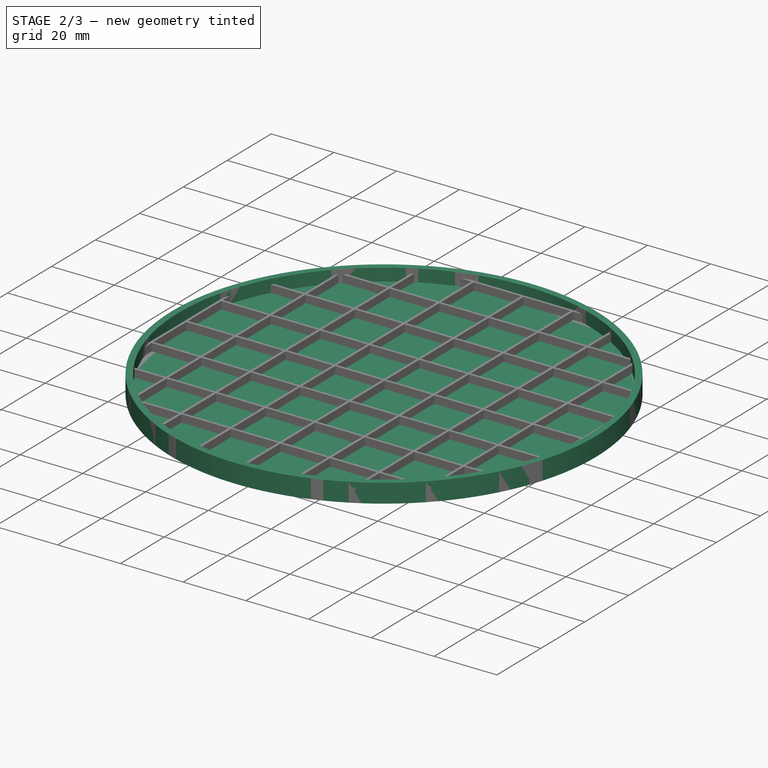
[diagram: stage 2 of 3 — iso view after this stage's code; geometry added in this stage tinted green]
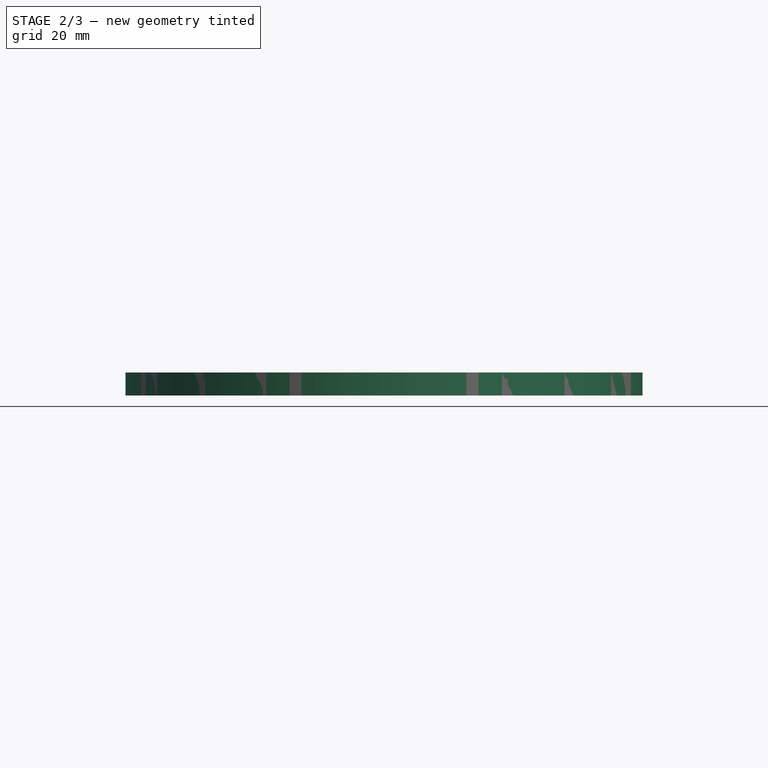
[diagram: stage 2 of 3 — front view after this stage's code; geometry added in this stage tinted green]
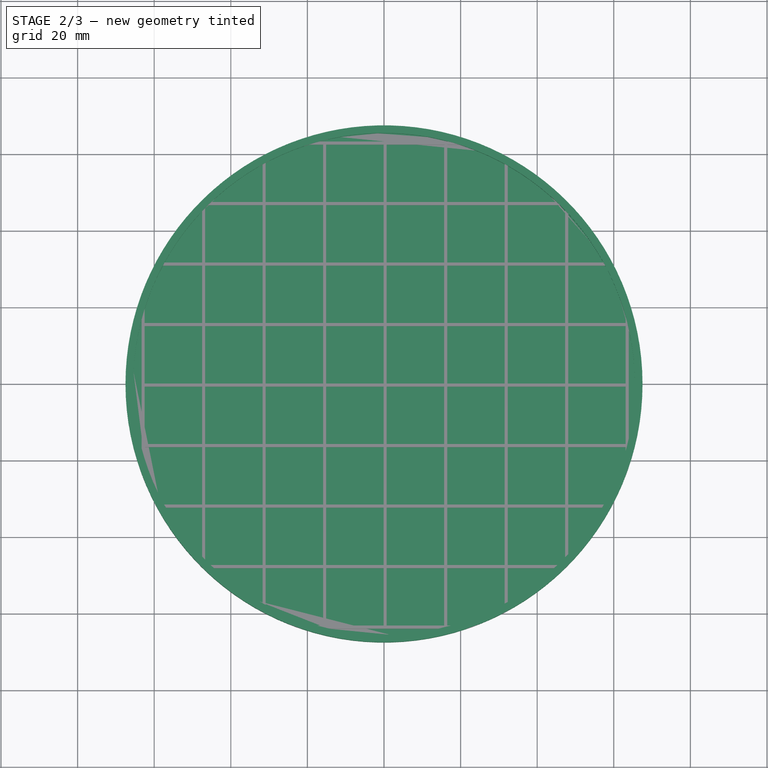
[diagram: stage 2 of 3 — top view after this stage's code; geometry added in this stage tinted green]
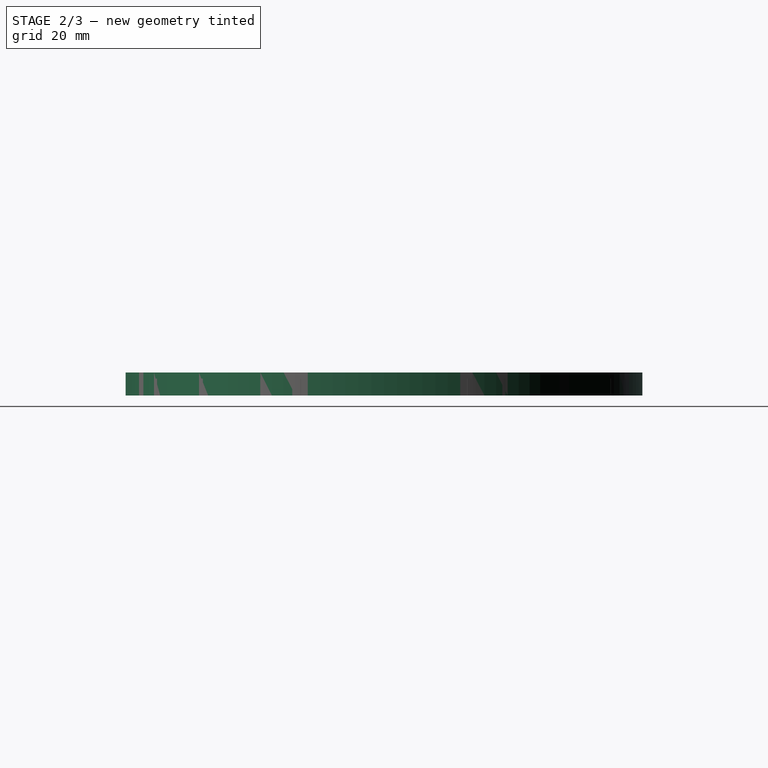
[diagram: stage 2 of 3 — right view after this stage's code; geometry added in this stage tinted green]
FEATURE [Spreadsheet::Sheet] Spreadsheet  label="Parameters"
  cells = A1=Main Body; D1=Arduino Nano; A2=shell; B2(shell)=2; D2=usb_width; E2=10; A3=lenX; B3(lenX)=110; D3=usb_height; E3=6; A4=lenY; B4(lenY)=140; D4=usb_upto; E4=10; A5=lenZ; B5(lenZ)=25; A6=front_fillet_radius; B6=3; A7=base_fillet_radius; B7=45; D7=Imported from Base.FSTcd on 11.21.19; A9=Screen; A10=height; B10=40; D10=Grid; A11=border; B11=7; D11=line_width; E11(grid_line_width)=0.8; A12=cutout_width; B12=72; D12=line_spacing; E12(grid_line_spacing)=15; A13=cutout_height; B13=25; A14=angle; B14=30; A16=plate_center; B16=115; A18=M4 Screw; A19=head_diam; B19(m4_head_diam)=9; A20=head_height; B20(m4_head_height)=4.4; A21=thru_diam; B21(m4_thru_diam)=5; A22=M5 Screw; A23=head_diam; B23=10; A24=head_height; B24=5.4; A25=thru_diam; B25=6.25; A27=TAL220; A28=hole_spacing; B28(TAL220_hole_spacing)=15; A29=standoff_height; B29(TAL220_standoff_height)=10; A30=to_center; B30(TAL220_to_center)=62.5; C30=Measured from first M5 to between the 2 m4s; A32=TAL221; A33=hole_spacing; B33=6
FEATURE [Sketcher::SketchObject] Sketch
  MapMode = 5
  Support = -> [XY_Plane]
  expr: Constraints[1] = Parameters.TAL220_to_center + 5
  sketch-geometry (1):
    g0: Circle CenterX=0 CenterY=0 CenterZ=0 NormalX=0 NormalY=0 NormalZ=1 AngleXU=0 Radius=67.5
  constraints (2):
    c: Coincident(g0,g-1)
    c: Radius(g0) = 67.5
FEATURE [PartDesign::Pad] Pad  label="Main Body"
  Length = 6
  Length2 = 100
  Profile = -> Sketch
  Type = 0
  expr: Length = Parameters.shell * 3
FEATURE [PartDesign::Thickness] Thickness  label="Shell"
  Base = -> Pad [Face3]
  BaseFeature = -> Pad
  Join = 0
  Mode = 0
  Reversed = true
  Value = 2
  expr: Value = Parameters.shell
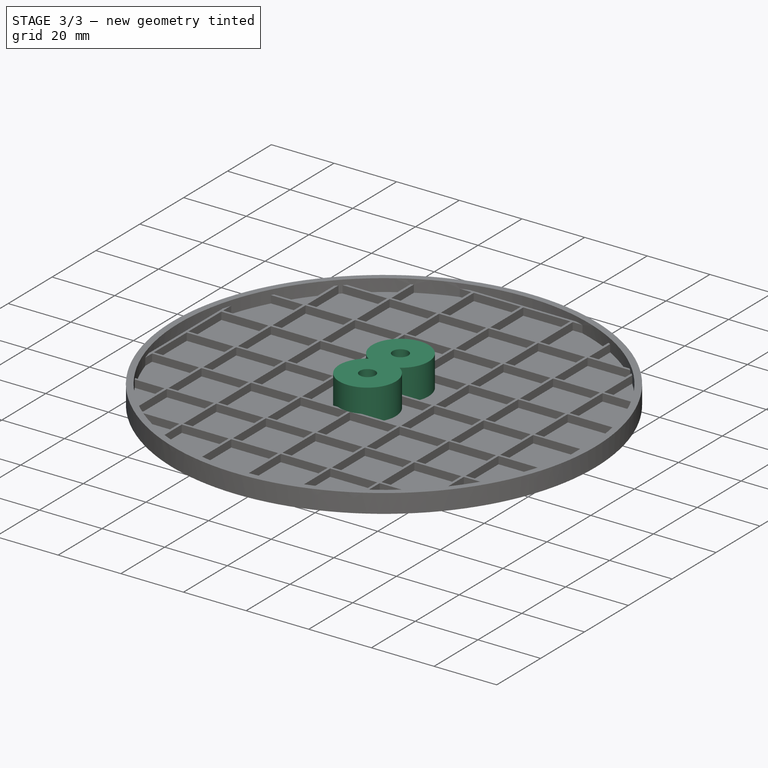
[diagram: stage 3 of 3 — iso view after this stage's code; geometry added in this stage tinted green]
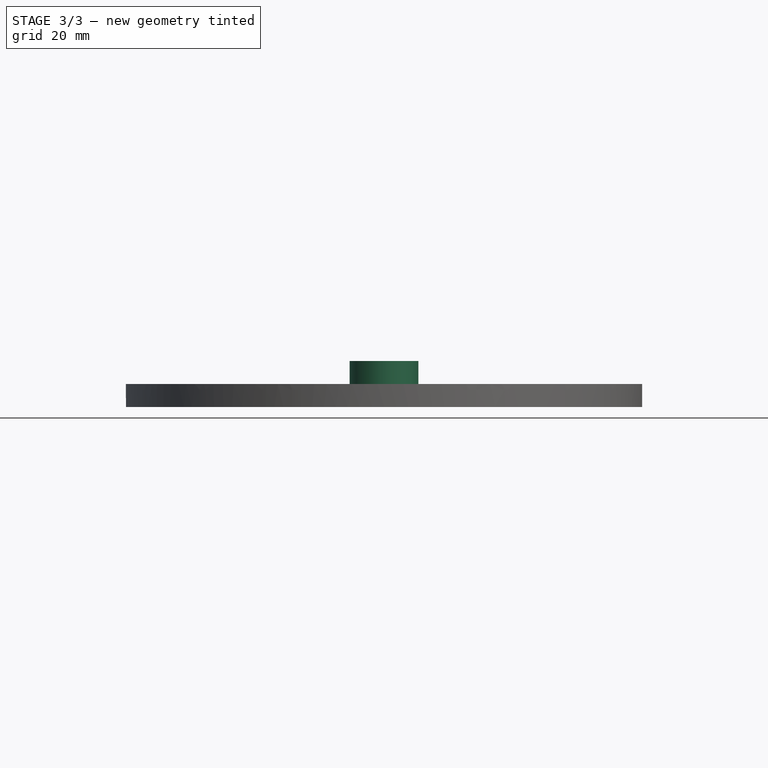
[diagram: stage 3 of 3 — front view after this stage's code; geometry added in this stage tinted green]
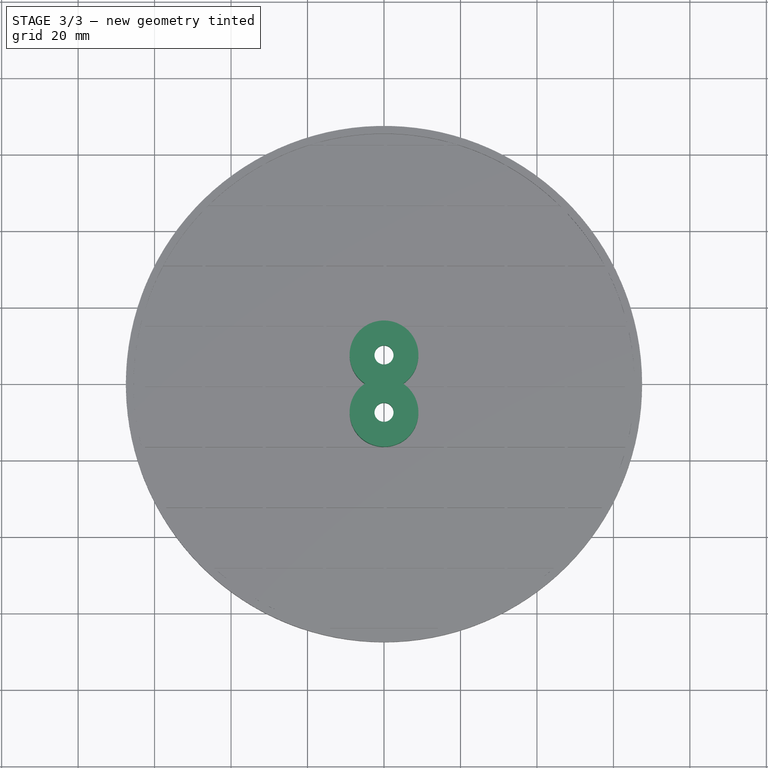
[diagram: stage 3 of 3 — top view after this stage's code; geometry added in this stage tinted green]
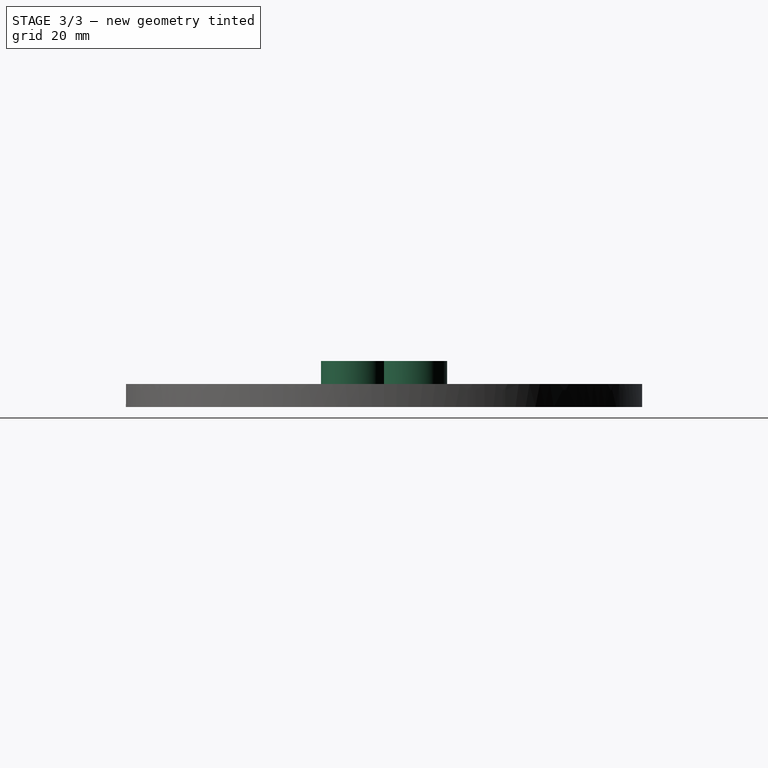
[diagram: stage 3 of 3 — right view after this stage's code; geometry added in this stage tinted green]
FEATURE [PartDesign::Plane] DatumPlane
  Length = 162
  MapMode = 5
  Placement = pos=(0,0,2) rot=(0,0,1;0rad)
  ResizeMode = 0
  Support = -> [Thickness]
  Width = 162
FEATURE [Sketcher::SketchObject] Sketch001
  MapMode = 5
  Placement = pos=(0,0,2) rot=(0,0,1;0rad)
  Support = -> [DatumPlane]
  expr: Constraints[9] = Parameters.TAL220_hole_spacing / 2
  expr: Constraints[7] = Parameters.TAL220_hole_spacing
  expr: Constraints[1] = Parameters.m4_thru_diam
  expr: Constraints[0] = Parameters.m4_head_diam * 2
  sketch-geometry (6):
    g0: Circle [constr] CenterX=0 CenterY=7.5 CenterZ=0 NormalX=0 NormalY=0 NormalZ=1 AngleXU=0 Radius=9
    g1: Circle CenterX=0 CenterY=7.5 CenterZ=0 NormalX=0 NormalY=0 NormalZ=1 AngleXU=0 Radius=2.5
    g2: Circle [constr] CenterX=0 CenterY=-7.5 CenterZ=0 NormalX=0 NormalY=0 NormalZ=1 AngleXU=0 Radius=9
    g3: Circle CenterX=0 CenterY=-7.5 CenterZ=0 NormalX=0 NormalY=0 NormalZ=1 AngleXU=0 Radius=2.5
    g4: ArcOfCircle CenterX=0 CenterY=7.5 CenterZ=0 NormalX=0 NormalY=0 NormalZ=1 AngleXU=0 Radius=9 StartAngle=5.29807 EndAngle=10.4099
    g5: ArcOfCircle CenterX=0 CenterY=-7.5 CenterZ=0 NormalX=0 NormalY=0 NormalZ=1 AngleXU=0 Radius=9 StartAngle=2.15648 EndAngle=7.2683
  constraints (18):
    c: Diameter(g0) = 18
    c: Diameter(g1) = 5
    c: Coincident(g0,g1)
    c: Equal(g0,g2)
    c: Equal(g1,g3)
    c: Coincident(g2,g3)
    c: Vertical(g0,g2)
    c: DistanceY(g2,g0) = 15
    c: Vertical(g2,g-1)
    c: DistanceY(g-1,g0) = 7.5
    c: Coincident(g4,g1)
    c: PointOnObject(g4,g0)
    c: PointOnObject(g4,g2)
    c: PointOnObject(g4,g2)
    c: Coincident(g5,g3)
    c: PointOnObject(g5,g2)
    c: PointOnObject(g5,g0)
    c: PointOnObject(g5,g0)
FEATURE [PartDesign::Pad] Pad001  label="Bosses"
  BaseFeature = -> Thickness
  Length = 10
  Length2 = 100
  Profile = -> Sketch001
  Type = 0
  expr: Length = Parameters.TAL220_standoff_height
FEATURE [PartDesign::Body] Body001  label="Grid"
  Group = -> [Sketch003,Pad003,Boolean]
  Origin = -> Origin001
  Tip = -> Boolean
FEATURE [PartDesign::Boolean] Boolean001  label="Grid Cutout"
  BaseFeature = -> Pad001
  Group = -> [Body001]
  Type = 0
FEATURE [PartDesign::Pocket] Pocket  label="Screw_cutout"
  BaseFeature = -> Boolean001
  Length = 4.4
  Length2 = 100
  Profile = -> Sketch002
  Reversed = true
  Type = 0
  expr: Length = Parameters.m4_head_height
FEATURE [PartDesign::Body] Body  label="Bed"
  Group = -> [Sketch,Pad,Thickness,DatumPlane,Sketch001,Pad001,Sketch002,Boolean001,Pocket]
  Origin = -> Origin
  Tip = -> Pocket
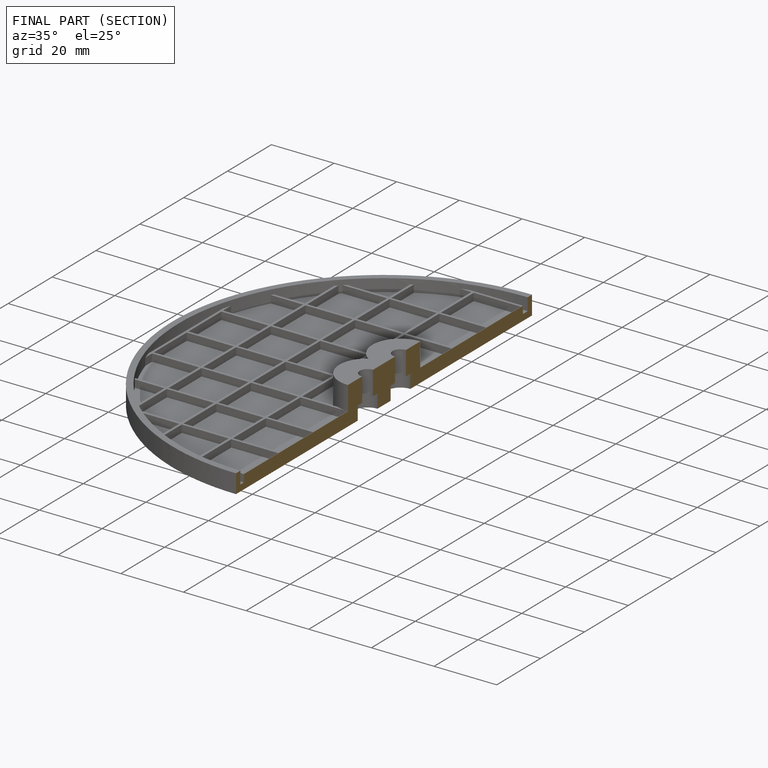
[diagram: finished part — half-section view (interior)]
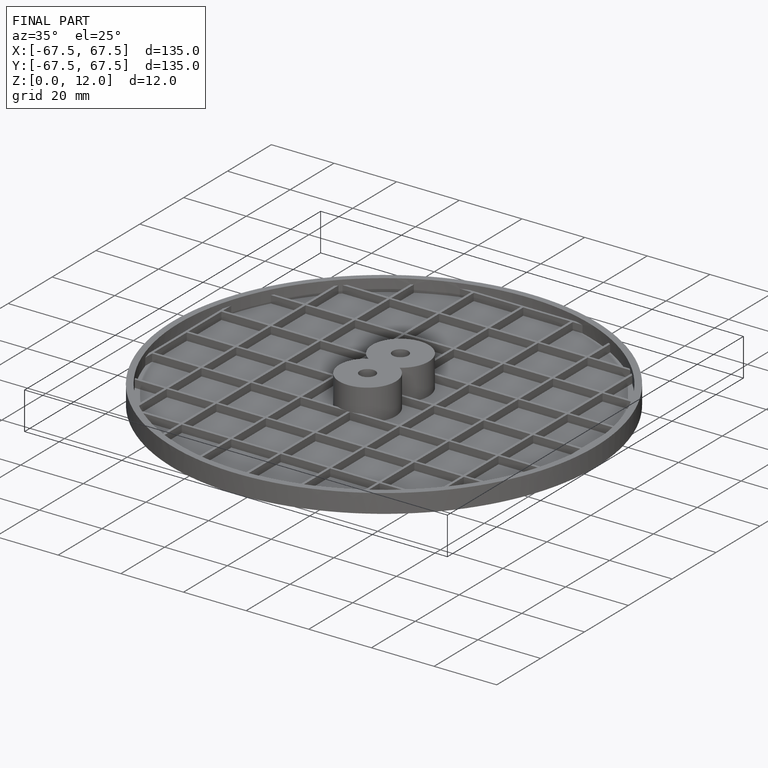
[diagram: finished part — iso view with bounding-box wireframe]
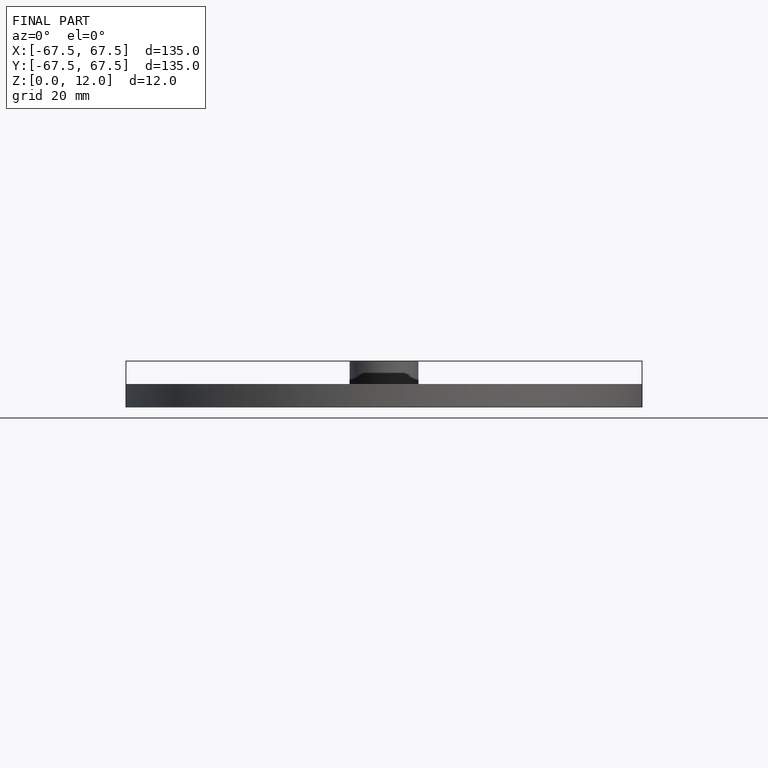
[diagram: finished part — front view with bounding-box wireframe]
